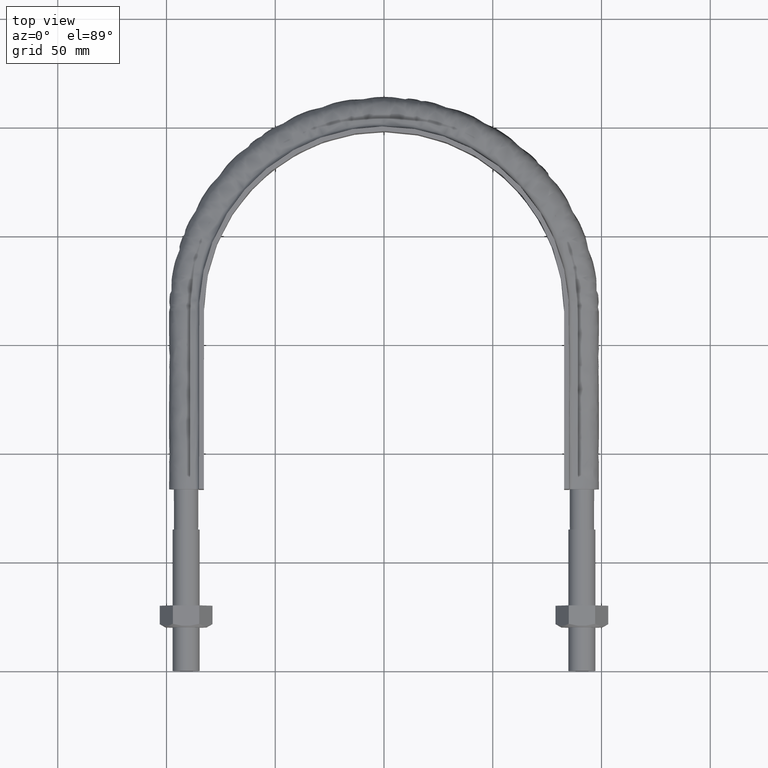
[diagram: clean part render]
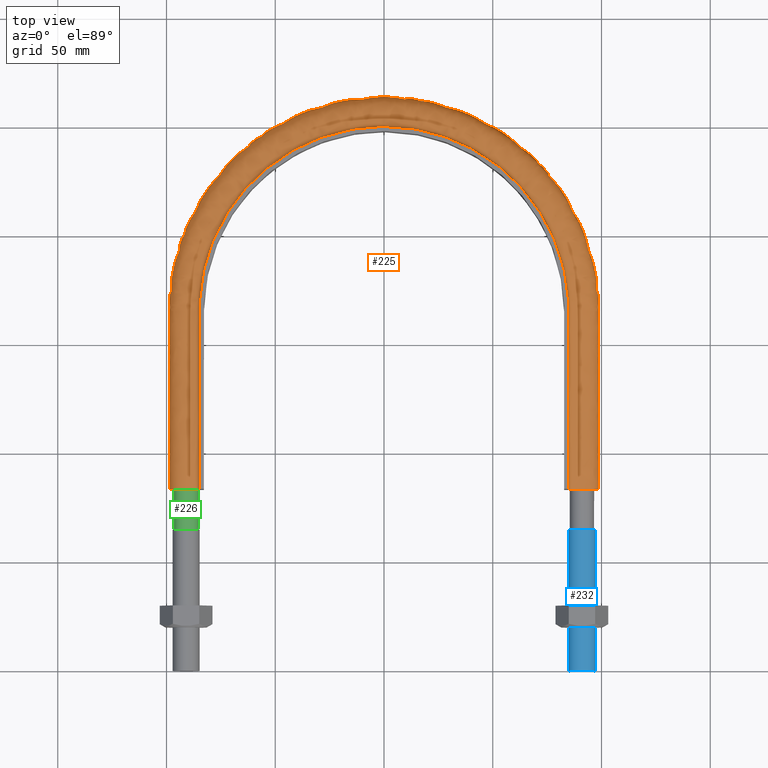
[diagram: same view with three faces highlighted in distinct colors, each labeled with its STEP entity id]
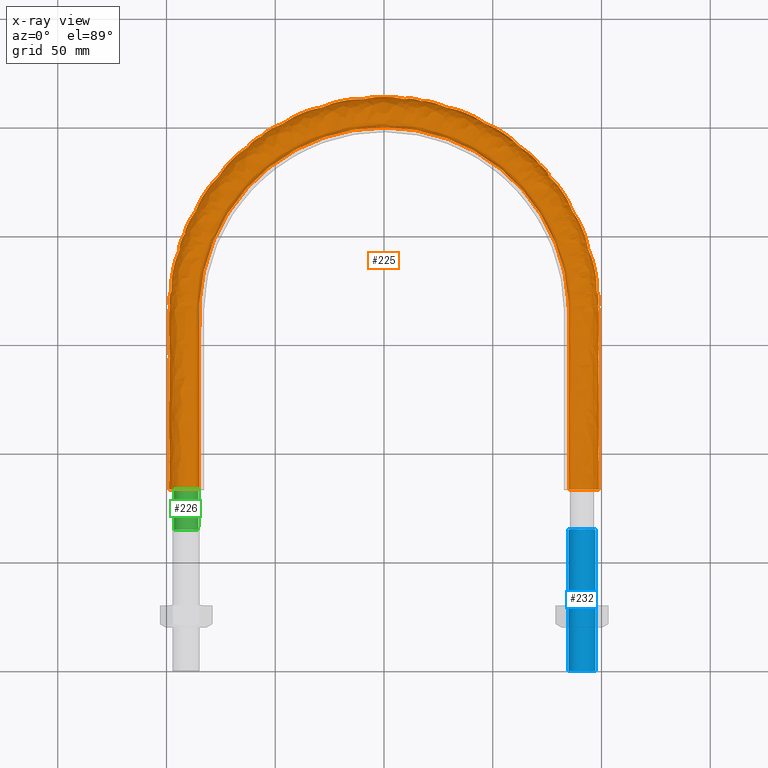
[diagram: x-ray of the same camera — body ghosted, the three highlighted faces saturated]
A machine part, top view with three faces highlighted in distinct colors.
The next image is the same camera in x-ray (body ghosted, the three faces saturated) — at least one of them is partly hidden behind the body in this view.
Their STEP definitions:

[orange] entity #225 — the highlighted face is a freeform B-spline surface patch.
#225 = ADVANCED_FACE( '', ( #275 ), #276, .F. );
#275 = FACE_OUTER_BOUND( '', #564, .T. );
#276 = B_SPLINE_SURFACE_WITH_KNOTS( '', 3, 3, ( ( #565, #566, #567, #568, #569, #570, #571, #572, #573, #574, #575, #576, #577, #578, #579, #580, #581 ), ( #582, #583, #584, #585, #586, #587, #588, #589, #590, #591, #592, #593, #594, #595, #596, #597, #598 ), ( #599, #600, #601, #602, #603, #604, #605, #606, #607, #608, #609, #610, #611, #612, #613, #614, #615 ), ( #616, #617, #618, #619, #620, #621, #622, #623, #624, #625, #626, #627, #628, #629, #630, #631, #632 ), ( #633, #634, #635, #636, #637, #638, #639, #640, #641, #642, #643, #644, #645, #646, #647, #648, #649 ), ( #650, #651, #652, #653, #654, #655, #656, #657, #658, #659, #660, #661, #662, #663, #664, #665, #666 ), ( #667, #668, #669, #670, #671, #672, #673, #674, #675, #676, #677, #678, #679, #680, #681, #682, #683 ), ( #684, #685, #686, #687, #688, #689, #690, #691, #692, #693, #694, #695, #696, #697, #698, #699, #700 ), ( #701, #702, #703, #704, #705, #706, #707, #708, #709, #710, #711, #712, #713, #714, #715, #716, #717 ), ( #718, #719, #720, #721, #722, #723, #724, #725, #726, #727, #728, #729, #730, #731, #732, #733, #734 ), ( #735, #736, #737, #738, #739, #740, #741, #742, #743, #744, #745, #746, #747, #748, #749, #750, #751 ), ( #752, #753, #754, #755, #756, #757, #758, #759, #760, #761, #762, #763, #764, #765, #766, #767, #768 ), ( #769, #770, #771, #772, #773, #774, #775, #776, #777, #778, #779, #780, #781, #782, #783, #784, #785 ), ( #786, #787, #788, #789, #790, #791, #792, #793, #794, #795, #796, #797, #798, #799, #800, #801, #802 ), ( #803, #804, #805, #806, #807, #808, #809, #810, #811, #812, #813, #814, #815, #816, #817, #818, #819 ), ( #820, #821, #822, #823, #824, #825, #826, #827, #828, #829, #830, #831, #832, #833, #834, #835, #836 ), ( #837, #838, #839, #840, #841, #842, #843, #844, #845, #846, #847, #848, #849, #850, #851, #852, #853 ), ( #854, #855, #856, #857, #858, #859, #860, #861, #862, #863, #864, #865, #866, #867, #868, #869, #870 ), ( #871, #872, #873, #874, #875, #876, #877, #878, #879, #880, #881, #882, #883, #884, #885, #886, #887 ), ( #888, #889, #890, #891, #892, #893, #894, #895, #896, #897, #898, #899, #900, #901, #902, #903, #904 ), ( #905, #906, #907, #908, #909, #910, #911, #912, #913, #914, #915, #916, #917, #918, #919, #920, #921 ), ( #922, #923, #924, #925, #926, #927, #928, #929, #930, #931, #932, #933, #934, #935, #936, #937, #938 ), ( #939, #940, #941, #942, #943, #944, #945, #946, #947, #948, #949, #950, #951, #952, #953, #954, #955 ), ( #956, #957, #958, #959, #960, #961, #962, #963, #964, #965, #966, #967, #968, #969, #970, #971, #972 ), ( #973, #974, #975, #976, #977, #978, #979, #980, #981, #982, #983, #984, #985, #986, #987, #988, #989 ), ( #990, #991, #992, #993, #994, #995, #996, #997, #998, #999, #1000, #1001, #1002, #1003, #1004, #1005, #1006 ), ( #1007, #1008, #1009, #1010, #1011, #1012, #1013, #1014, #1015, #1016, #1017, #1018, #1019, #1020, #1021, #1022, #1023 ), ( #1024, #1025, #1026, #1027, #1028, #1029, #1030, #1031, #1032, #1033, #1034, #1035, #1036, #1037, #1038, #1039, #1040 ), ( #1041, #1042, #1043, #1044, #1045, #1046, #1047, #1048, #1049, #1050, #1051, #1052, #1053, #1054, #1055, #1056, #1057 ), ( #1058, #1059, #1060, #1061, #1062, #1063, #1064, #1065, #1066, #1067, #1068, #1069, #1070, #1071, #1072, #1073, #1074 ), ( #1075, #1076, #1077, #1078, #1079, #1080, #1081, #1082, #1083, #1084, #1085, #1086, #1087, #1088, #1089, #1090, #1091 ) ), .UNSPECIFIED., .F., .F., .F., ( 4, 3, 1, 1, 1, 3, 3, 1, 1, 1, 3, 3, 1, 1, 1, 3, 4 ), ( 4, 3, 1, 1, 1, 1, 1, 1, 1, 3, 4 ), ( 0.105263157894737, 0.157894736842105, 0.210526315789474, 0.263157894736842, 0.315789473684211, 0.368421052631579, 0.421052631578947, 0.473684210526316, 0.526315789473684, 0.578947368421053, 0.631578947368421, 0.684210526315789, 0.736842105263158, 0.789473684210526, 0.842105263157895, 0.894736842105263, 0.947368421052632 ), ( 0.000000000000000, 1.00000000000000, 2.00000000000000, 3.00000000000000, 4.00000000000000, 5.00000000000000, 6.00000000000000, 7.00000000000000, 8.00000000000000, 9.00000000000000, 10.0000000000000 ), .UNSPECIFIED. );
#564 = EDGE_LOOP( '', ( #1417, #1418, #1419, #1420 ) );
#565 = CARTESIAN_POINT( '', ( 85.0500000000000, 83.5000000000000, -15.0000000000000 ) );
#566 = CARTESIAN_POINT( '', ( 85.0500000000000, 110.716666666667, -15.0000000000000 ) );
#567 = CARTESIAN_POINT( '', ( 85.0500000000000, 137.933333333333, -15.0000000000000 ) );
#568 = CARTESIAN_POINT( '', ( 85.0500000000000, 165.150000000000, -15.0000000000000 ) );
#569 = CARTESIAN_POINT( '', ( 85.0500000000000, 176.271250144316, -15.0000000000000 ) );
#570 = CARTESIAN_POINT( '', ( 80.6216056780530, 198.549331025117, -15.0000000000000 ) );
#571 = CARTESIAN_POINT( '', ( 61.7051055673243, 226.853821731524, -15.0000000000000 ) );
#572 = CARTESIAN_POINT( '', ( 33.3945624921453, 245.771972488282, -15.0000000000000 ) );
#573 = CARTESIAN_POINT( '', ( 6.21358030715059E-014, 252.414013755859, -15.0000000000000 ) );
#574 = CARTESIAN_POINT( '', ( -33.3945624921452, 245.771972488282, -15.0000000000000 ) );
#575 = CARTESIAN_POINT( '', ( -61.7051055673243, 226.853821731524, -15.0000000000000 ) );
#576 = CARTESIAN_POINT( '', ( -80.6216056780529, 198.549331025117, -15.0000000000000 ) );
#577 = CARTESIAN_POINT( '', ( -85.0499999999999, 176.271250144316, -15.0000000000000 ) );
#578 = CARTESIAN_POINT( '', ( -85.0500000000000, 165.150000000000, -15.0000000000000 ) );
#579 = CARTESIAN_POINT( '', ( -85.0499999999999, 137.933333333333, -15.0000000000000 ) );
#580 = CARTESIAN_POINT( '', ( -85.0499999999999, 110.716666666667, -15.0000000000000 ) );
#581 = CARTESIAN_POINT( '', ( -85.0499999999999, 83.5000000000001, -15.0000000000000 ) );
#582 = CARTESIAN_POINT( '', ( 85.0500000000000, 83.5000000000000, -13.2666666666667 ) );
#583 = CARTESIAN_POINT( '', ( 85.0500000000000, 110.716666666667, -13.2666666666667 ) );
#584 = CARTESIAN_POINT( '', ( 85.0500000000000, 137.933333333333, -13.2666666666667 ) );
#585 = CARTESIAN_POINT( '', ( 85.0500000000000, 165.150000000000, -13.2666666666667 ) );
#586 = CARTESIAN_POINT( '', ( 85.0500000000000, 176.271250144316, -13.2666666666667 ) );
#587 = CARTESIAN_POINT( '', ( 80.6216056780530, 198.549331025117, -13.2666666666667 ) );
#588 = CARTESIAN_POINT( '', ( 61.7051055673243, 226.853821731524, -13.2666666666667 ) );
#589 = CARTESIAN_POINT( '', ( 33.3945624921453, 245.771972488282, -13.2666666666667 ) );
#590 = CARTESIAN_POINT( '', ( 6.21358030715059E-014, 252.414013755859, -13.2666666666667 ) );
#591 = CARTESIAN_POINT( '', ( -33.3945624921452, 245.771972488282, -13.2666666666667 ) );
#592 = CARTESIAN_POINT( '', ( -61.7051055673243, 226.853821731524, -13.2666666666667 ) );
#593 = CARTESIAN_POINT( '', ( -80.6216056780529, 198.549331025117, -13.2666666666667 ) );
#594 = CARTESIAN_POINT( '', ( -85.0499999999999, 176.271250144316, -13.2666666666667 ) );
#595 = CARTESIAN_POINT( '', ( -85.0500000000000, 165.150000000000, -13.2666666666667 ) );
#596 = CARTESIAN_POINT( '', ( -85.0499999999999, 137.933333333333, -13.2666666666667 ) );
#597 = CARTESIAN_POINT( '', ( -85.0499999999999, 110.716666666667, -13.2666666666667 ) );
#598 = CARTESIAN_POINT( '', ( -85.0499999999999, 83.5000000000001, -13.2666666666667 ) );
#599 = CARTESIAN_POINT( '', ( 85.0500000000000, 83.5000000000000, -11.5333333333333 ) );
#600 = CARTESIAN_POINT( '', ( 85.0500000000000, 110.716666666667, -11.5333333333333 ) );
#601 = CARTESIAN_POINT( '', ( 85.0500000000000, 137.933333333333, -11.5333333333333 ) );
#602 = CARTESIAN_POINT( '', ( 85.0500000000000, 165.150000000000, -11.5333333333333 ) );
#603 = CARTESIAN_POINT( '', ( 85.0500000000000, 176.271250144316, -11.5333333333333 ) );
#604 = CARTESIAN_POINT( '', ( 80.6216056780530, 198.549331025117, -11.5333333333333 ) );
#605 = CARTESIAN_POINT( '', ( 61.7051055673243, 226.853821731524, -11.5333333333333 ) );
#606 = CARTESIAN_POINT( '', ( 33.3945624921453, 245.771972488282, -11.5333333333333 ) );
#607 = CARTESIAN_POINT( '', ( 6.21358030715059E-014, 252.414013755859, -11.5333333333333 ) );
#608 = CARTESIAN_POINT( '', ( -33.3945624921452, 245.771972488282, -11.5333333333333 ) );
#609 = CARTESIAN_POINT( '', ( -61.7051055673243, 226.853821731524, -11.5333333333333 ) );
#610 = CARTESIAN_POINT( '', ( -80.6216056780529, 198.549331025117, -11.5333333333333 ) );
#611 = CARTESIAN_POINT( '', ( -85.0499999999999, 176.271250144316, -11.5333333333333 ) );
#612 = CARTESIAN_POINT( '', ( -85.0500000000000, 165.150000000000, -11.5333333333333 ) );
#613 = CARTESIAN_POINT( '', ( -85.0499999999999, 137.933333333333, -11.5333333333333 ) );
#614 = CARTESIAN_POINT( '', ( -85.0499999999999, 110.716666666667, -11.5333333333333 ) );
#615 = CARTESIAN_POINT( '', ( -85.0499999999999, 83.5000000000001, -11.5333333333333 ) );
#616 = CARTESIAN_POINT( '', ( 85.0500000000000, 83.5000000000000, -9.79999999999998 ) );
#617 = CARTESIAN_POINT( '', ( 85.0500000000000, 110.716666666667, -9.79999999999998 ) );
#618 = CARTESIAN_POINT( '', ( 85.0500000000000, 137.933333333333, -9.79999999999999 ) );
#619 = CARTESIAN_POINT( '', ( 85.0500000000000, 165.150000000000, -9.79999999999999 ) );
#620 = CARTESIAN_POINT( '', ( 85.0500000000000, 176.271250144316, -9.79999999999999 ) );
#621 = CARTESIAN_POINT( '', ( 80.6216056780530, 198.549331025117, -9.80000000000000 ) );
#622 = CARTESIAN_POINT( '', ( 61.7051055673243, 226.853821731524, -9.79999999999998 ) );
#623 = CARTESIAN_POINT( '', ( 33.3945624921453, 245.771972488282, -9.80000000000000 ) );
#624 = CARTESIAN_POINT( '', ( 6.21358030715059E-014, 252.414013755859, -9.79999999999998 ) );
#625 = CARTESIAN_POINT( '', ( -33.3945624921452, 245.771972488282, -9.80000000000000 ) );
#626 = CARTESIAN_POINT( '', ( -61.7051055673243, 226.853821731524, -9.79999999999998 ) );
#627 = CARTESIAN_POINT( '', ( -80.6216056780529, 198.549331025117, -9.80000000000000 ) );
#628 = CARTESIAN_POINT( '', ( -85.0499999999999, 176.271250144316, -9.79999999999999 ) );
#629 = CARTESIAN_POINT( '', ( -85.0500000000000, 165.150000000000, -9.79999999999999 ) );
#630 = CARTESIAN_POINT( '', ( -85.0499999999999, 137.933333333333, -9.79999999999999 ) );
#631 = CARTESIAN_POINT( '', ( -85.0499999999999, 110.716666666667, -9.79999999999999 ) );
#632 = CARTESIAN_POINT( '', ( -85.0499999999999, 83.5000000000001, -9.79999999999999 ) );
#633 = CARTESIAN_POINT( '', ( 85.0500000000000, 83.5000000000000, -9.53823584172332 ) );
#634 = CARTESIAN_POINT( '', ( 85.0500000000000, 110.716666666667, -9.53823584172332 ) );
#635 = CARTESIAN_POINT( '', ( 85.0500000000000, 137.933333333333, -9.53823584172332 ) );
#636 = CARTESIAN_POINT( '', ( 85.0500000000000, 165.150000000000, -9.53823584172332 ) );
#637 = CARTESIAN_POINT( '', ( 85.0500000000000, 176.271250144316, -9.53823584172332 ) );
#638 = CARTESIAN_POINT( '', ( 80.6216056780530, 198.549331025117, -9.53823584172333 ) );
#639 = CARTESIAN_POINT( '', ( 61.7051055673243, 226.853821731524, -9.53823584172332 ) );
#640 = CARTESIAN_POINT( '', ( 33.3945624921453, 245.771972488282, -9.53823584172333 ) );
#641 = CARTESIAN_POINT( '', ( 6.21358030715059E-014, 252.414013755859, -9.53823584172332 ) );
#642 = CARTESIAN_POINT( '', ( -33.3945624921452, 245.771972488282, -9.53823584172333 ) );
#643 = CARTESIAN_POINT( '', ( -61.7051055673243, 226.853821731524, -9.53823584172332 ) );
#644 = CARTESIAN_POINT( '', ( -80.6216056780529, 198.549331025117, -9.53823584172333 ) );
#645 = CARTESIAN_POINT( '', ( -85.0499999999999, 176.271250144316, -9.53823584172332 ) );
#646 = CARTESIAN_POINT( '', ( -85.0500000000000, 165.150000000000, -9.53823584172332 ) );
#647 = CARTESIAN_POINT( '', ( -85.0499999999999, 137.933333333333, -9.53823584172332 ) );
#648 = CARTESIAN_POINT( '', ( -85.0499999999999, 110.716666666667, -9.53823584172332 ) );
#649 = CARTESIAN_POINT( '', ( -85.0499999999999, 83.5000000000001, -9.53823584172332 ) );
#650 = CARTESIAN_POINT( '', ( 85.1541362568359, 83.5000000000000, -9.01470752516999 ) );
#651 = CARTESIAN_POINT( '', ( 85.1541362568359, 110.716666666667, -9.01470752516999 ) );
#652 = CARTESIAN_POINT( '', ( 85.1541362568359, 137.933333333333, -9.01470752517000 ) );
#653 = CARTESIAN_POINT( '', ( 85.1541362568359, 165.150000000000, -9.01470752517000 ) );
#654 = CARTESIAN_POINT( '', ( 85.1541362568359, 176.285059470567, -9.01470752517000 ) );
#655 = CARTESIAN_POINT( '', ( 80.7203197548950, 198.590136276193, -9.01470752517000 ) );
#656 = CARTESIAN_POINT( '', ( 61.7806580508216, 226.929396684577, -9.01470752516999 ) );
#657 = CARTESIAN_POINT( '', ( 33.4354512015704, 245.870680145251, -9.01470752517000 ) );
#658 = CARTESIAN_POINT( '', ( 6.21488880585789E-014, 252.520864312629, -9.01470752516999 ) );
#659 = CARTESIAN_POINT( '', ( -33.4354512015703, 245.870680145251, -9.01470752517001 ) );
#660 = CARTESIAN_POINT( '', ( -61.7806580508216, 226.929396684577, -9.01470752516999 ) );
#661 = CARTESIAN_POINT( '', ( -80.7203197548949, 198.590136276193, -9.01470752517001 ) );
#662 = CARTESIAN_POINT( '', ( -85.1541362568359, 176.285059470567, -9.01470752517000 ) );
#663 = CARTESIAN_POINT( '', ( -85.1541362568359, 165.150000000000, -9.01470752517000 ) );
#664 = CARTESIAN_POINT( '', ( -85.1541362568359, 137.933333333333, -9.01470752517000 ) );
#665 = CARTESIAN_POINT( '', ( -85.1541362568359, 110.716666666667, -9.01470752517000 ) );
#666 = CARTESIAN_POINT( '', ( -85.1541362568359, 83.5000000000001, -9.01470752517000 ) );
#667 = CARTESIAN_POINT( '', ( 85.5989687109389, 83.5000000000000, -8.34896871093886 ) );
#668 = CARTESIAN_POINT( '', ( 85.5989687109389, 110.716666666667, -8.34896871093886 ) );
#669 = CARTESIAN_POINT( '', ( 85.5989687109389, 137.933333333333, -8.34896871093886 ) );
#670 = CARTESIAN_POINT( '', ( 85.5989687109389, 165.150000000000, -8.34896871093886 ) );
#671 = CARTESIAN_POINT( '', ( 85.5989687109389, 176.344047921589, -8.34896871093886 ) );
#672 = CARTESIAN_POINT( '', ( 81.1419906156532, 198.764441561673, -8.34896871093887 ) );
#673 = CARTESIAN_POINT( '', ( 62.1033909554682, 227.252225571044, -8.34896871093886 ) );
#674 = CARTESIAN_POINT( '', ( 33.6101129909540, 246.292323582632, -8.34896871093887 ) );
#675 = CARTESIAN_POINT( '', ( 6.04700589184310E-014, 252.977291275093, -8.34896871093886 ) );
#676 = CARTESIAN_POINT( '', ( -33.6101129909539, 246.292323582632, -8.34896871093887 ) );
#677 = CARTESIAN_POINT( '', ( -62.1033909554682, 227.252225571044, -8.34896871093886 ) );
#678 = CARTESIAN_POINT( '', ( -81.1419906156532, 198.764441561673, -8.34896871093887 ) );
#679 = CARTESIAN_POINT( '', ( -85.5989687109388, 176.344047921589, -8.34896871093886 ) );
#680 = CARTESIAN_POINT( '', ( -85.5989687109388, 165.150000000000, -8.34896871093886 ) );
#681 = CARTESIAN_POINT( '', ( -85.5989687109388, 137.933333333333, -8.34896871093886 ) );
#682 = CARTESIAN_POINT( '', ( -85.5989687109388, 110.716666666667, -8.34896871093886 ) );
#683 = CARTESIAN_POINT( '', ( -85.5989687109388, 83.5000000000001, -8.34896871093886 ) );
#684 = CARTESIAN_POINT( '', ( 86.2647075251700, 83.5000000000000, -7.90413625683589 ) );
#685 = CARTESIAN_POINT( '', ( 86.2647075251700, 110.716666666667, -7.90413625683589 ) );
#686 = CARTESIAN_POINT( '', ( 86.2647075251700, 137.933333333333, -7.90413625683590 ) );
#687 = CARTESIAN_POINT( '', ( 86.2647075251700, 165.150000000000, -7.90413625683590 ) );
#688 = CARTESIAN_POINT( '', ( 86.2647075251700, 176.432330377319, -7.90413625683590 ) );
#689 = CARTESIAN_POINT( '', ( 81.7730656558122, 199.025307856386, -7.90413625683590 ) );
#690 = CARTESIAN_POINT( '', ( 62.5863948803642, 227.735373142885, -7.90413625683589 ) );
#691 = CARTESIAN_POINT( '', ( 33.8715128314630, 246.923357580806, -7.90413625683590 ) );
#692 = CARTESIAN_POINT( '', ( 5.88189872275561E-014, 253.660382497352, -7.90413625683589 ) );
#693 = CARTESIAN_POINT( '', ( -33.8715128314629, 246.923357580806, -7.90413625683591 ) );
#694 = CARTESIAN_POINT( '', ( -62.5863948803641, 227.735373142885, -7.90413625683589 ) );
#695 = CARTESIAN_POINT( '', ( -81.7730656558121, 199.025307856386, -7.90413625683591 ) );
#696 = CARTESIAN_POINT( '', ( -86.2647075251700, 176.432330377319, -7.90413625683590 ) );
#697 = CARTESIAN_POINT( '', ( -86.2647075251700, 165.150000000000, -7.90413625683590 ) );
#698 = CARTESIAN_POINT( '', ( -86.2647075251700, 137.933333333333, -7.90413625683590 ) );
#699 = CARTESIAN_POINT( '', ( -86.2647075251700, 110.716666666667, -7.90413625683590 ) );
#700 = CARTESIAN_POINT( '', ( -86.2647075251700, 83.5000000000001, -7.90413625683590 ) );
#701 = CARTESIAN_POINT( '', ( 86.7882358417233, 83.5000000000000, -7.79999999999998 ) );
#702 = CARTESIAN_POINT( '', ( 86.7882358417233, 110.716666666667, -7.79999999999998 ) );
#703 = CARTESIAN_POINT( '', ( 86.7882358417233, 137.933333333333, -7.79999999999999 ) );
#704 = CARTESIAN_POINT( '', ( 86.7882358417233, 165.150000000000, -7.79999999999999 ) );
#705 = CARTESIAN_POINT( '', ( 86.7882358417233, 176.501754548543, -7.79999999999999 ) );
#706 = CARTESIAN_POINT( '', ( 82.2693348327488, 199.230449706609, -7.79999999999999 ) );
#707 = CARTESIAN_POINT( '', ( 62.9662228643784, 228.115314088982, -7.79999999999998 ) );
#708 = CARTESIAN_POINT( '', ( 34.0770742551378, 247.419594482862, -7.79999999999999 ) );
#709 = CARTESIAN_POINT( '', ( 6.06194933757985E-014, 254.197556521154, -7.79999999999998 ) );
#710 = CARTESIAN_POINT( '', ( -34.0770742551378, 247.419594482862, -7.79999999999999 ) );
#711 = CARTESIAN_POINT( '', ( -62.9662228643783, 228.115314088982, -7.79999999999998 ) );
#712 = CARTESIAN_POINT( '', ( -82.2693348327487, 199.230449706609, -7.80000000000000 ) );
#713 = CARTESIAN_POINT( '', ( -86.7882358417233, 176.501754548543, -7.79999999999999 ) );
#714 = CARTESIAN_POINT( '', ( -86.7882358417233, 165.150000000000, -7.79999999999999 ) );
#715 = CARTESIAN_POINT( '', ( -86.7882358417233, 137.933333333333, -7.79999999999999 ) );
#716 = CARTESIAN_POINT( '', ( -86.7882358417233, 110.716666666667, -7.79999999999999 ) );
#717 = CARTESIAN_POINT( '', ( -86.7882358417233, 83.5000000000001, -7.79999999999999 ) );
#718 = CARTESIAN_POINT( '', ( 87.0500000000000, 83.5000000000000, -7.79999999999998 ) );
#719 = CARTESIAN_POINT( '', ( 87.0500000000000, 110.716666666667, -7.79999999999998 ) );
#720 = CARTESIAN_POINT( '', ( 87.0500000000000, 137.933333333333, -7.79999999999999 ) );
#721 = CARTESIAN_POINT( '', ( 87.0500000000000, 165.150000000000, -7.79999999999999 ) );
#722 = CARTESIAN_POINT( '', ( 87.0500000000000, 176.536466634155, -7.79999999999999 ) );
#723 = CARTESIAN_POINT( '', ( 82.5174694212171, 199.333020631721, -7.79999999999999 ) );
#724 = CARTESIAN_POINT( '', ( 63.1561368563854, 228.305284562031, -7.79999999999998 ) );
#725 = CARTESIAN_POINT( '', ( 34.1798549669753, 247.667712933890, -7.79999999999999 ) );
#726 = CARTESIAN_POINT( '', ( 6.06523847119314E-014, 254.466143533055, -7.79999999999998 ) );
#727 = CARTESIAN_POINT( '', ( -34.1798549669752, 247.667712933890, -7.79999999999999 ) );
#728 = CARTESIAN_POINT( '', ( -63.1561368563854, 228.305284562031, -7.79999999999998 ) );
#729 = CARTESIAN_POINT( '', ( -82.5174694212170, 199.333020631721, -7.80000000000000 ) );
#730 = CARTESIAN_POINT( '', ( -87.0499999999999, 176.536466634155, -7.79999999999999 ) );
#731 = CARTESIAN_POINT( '', ( -87.0500000000000, 165.150000000000, -7.79999999999999 ) );
#732 = CARTESIAN_POINT( '', ( -87.0499999999999, 137.933333333333, -7.79999999999999 ) );
#733 = CARTESIAN_POINT( '', ( -87.0499999999999, 110.716666666667, -7.79999999999999 ) );
#734 = CARTESIAN_POINT( '', ( -87.0499999999999, 83.5000000000001, -7.79999999999999 ) );
#735 = CARTESIAN_POINT( '', ( 88.3666666666667, 83.5000000000000, -7.79999999999999 ) );
#736 = CARTESIAN_POINT( '', ( 88.3666666666667, 110.716666666667, -7.79999999999999 ) );
#737 = CARTESIAN_POINT( '', ( 88.3666666666667, 137.933333333333, -7.79999999999999 ) );
#738 = CARTESIAN_POINT( '', ( 88.3666666666667, 165.150000000000, -7.79999999999999 ) );
#739 = CARTESIAN_POINT( '', ( 88.3666666666667, 176.711067489966, -7.79999999999999 ) );
#740 = CARTESIAN_POINT( '', ( 83.7655797188001, 199.848949622735, -7.80000000000000 ) );
#741 = CARTESIAN_POINT( '', ( 64.1113991216840, 229.260830925448, -7.79999999999999 ) );
#742 = CARTESIAN_POINT( '', ( 34.6968391795717, 248.915742060582, -7.80000000000000 ) );
#743 = CARTESIAN_POINT( '', ( 6.42872741988498E-014, 255.817128969709, -7.79999999999999 ) );
#744 = CARTESIAN_POINT( '', ( -34.6968391795716, 248.915742060582, -7.80000000000000 ) );
#745 = CARTESIAN_POINT( '', ( -64.1113991216840, 229.260830925448, -7.79999999999998 ) );
#746 = CARTESIAN_POINT( '', ( -83.7655797188000, 199.848949622735, -7.80000000000000 ) );
#747 = CARTESIAN_POINT( '', ( -88.3666666666666, 176.711067489966, -7.79999999999999 ) );
#748 = CARTESIAN_POINT( '', ( -88.3666666666666, 165.150000000000, -7.79999999999999 ) );
#749 = CARTESIAN_POINT( '', ( -88.3666666666666, 137.933333333333, -7.79999999999999 ) );
#750 = CARTESIAN_POINT( '', ( -88.3666666666666, 110.716666666667, -7.79999999999999 ) );
#751 = CARTESIAN_POINT( '', ( -88.3666666666666, 83.5000000000001, -7.79999999999999 ) );
#752 = CARTESIAN_POINT( '', ( 89.6833333333333, 83.5000000000000, -7.79999999999999 ) );
#753 = CARTESIAN_POINT( '', ( 89.6833333333333, 110.716666666667, -7.79999999999999 ) );
#754 = CARTESIAN_POINT( '', ( 89.6833333333333, 137.933333333333, -7.79999999999999 ) );
#755 = CARTESIAN_POINT( '', ( 89.6833333333333, 165.150000000000, -7.79999999999999 ) );
#756 = CARTESIAN_POINT( '', ( 89.6833333333334, 176.885668345777, -7.79999999999999 ) );
#757 = CARTESIAN_POINT( '', ( 85.0136900163831, 200.364878613750, -7.80000000000000 ) );
#758 = CARTESIAN_POINT( '', ( 65.0666613869826, 230.216377288864, -7.79999999999999 ) );
#759 = CARTESIAN_POINT( '', ( 35.2138233921681, 250.163771187274, -7.80000000000000 ) );
#760 = CARTESIAN_POINT( '', ( 6.09832697818609E-014, 257.168114406363, -7.79999999999999 ) );
#761 = CARTESIAN_POINT( '', ( -35.2138233921680, 250.163771187274, -7.80000000000000 ) );
#762 = CARTESIAN_POINT( '', ( -65.0666613869825, 230.216377288864, -7.79999999999998 ) );
#763 = CARTESIAN_POINT( '', ( -85.0136900163831, 200.364878613750, -7.80000000000000 ) );
#764 = CARTESIAN_POINT( '', ( -89.6833333333333, 176.885668345777, -7.79999999999999 ) );
#765 = CARTESIAN_POINT( '', ( -89.6833333333333, 165.150000000000, -7.79999999999999 ) );
#766 = CARTESIAN_POINT( '', ( -89.6833333333333, 137.933333333333, -7.79999999999999 ) );
#767 = CARTESIAN_POINT( '', ( -89.6833333333333, 110.716666666667, -7.79999999999999 ) );
#768 = CARTESIAN_POINT( '', ( -89.6833333333333, 83.5000000000001, -7.79999999999999 ) );
#769 = CARTESIAN_POINT( '', ( 91.0000000000000, 83.5000000000000, -7.79999999999999 ) );
#770 = CARTESIAN_POINT( '', ( 91.0000000000000, 110.716666666667, -7.79999999999999 ) );
#771 = CARTESIAN_POINT( '', ( 91.0000000000000, 137.933333333333, -7.79999999999999 ) );
#772 = CARTESIAN_POINT( '', ( 91.0000000000000, 165.150000000000, -7.79999999999999 ) );
#773 = CARTESIAN_POINT( '', ( 91.0000000000000, 177.060269201588, -7.79999999999999 ) );
#774 = CARTESIAN_POINT( '', ( 86.2618003139662, 200.880807604765, -7.80000000000000 ) );
#775 = CARTESIAN_POINT( '', ( 66.0219236522812, 231.171923652281, -7.79999999999999 ) );
#776 = CARTESIAN_POINT( '', ( 35.7308076047645, 251.411800313966, -7.80000000000000 ) );
#777 = CARTESIAN_POINT( '', ( 6.46181592687794E-014, 258.519099843017, -7.79999999999999 ) );
#778 = CARTESIAN_POINT( '', ( -35.7308076047645, 251.411800313966, -7.80000000000000 ) );
#779 = CARTESIAN_POINT( '', ( -66.0219236522811, 231.171923652281, -7.79999999999998 ) );
#780 = CARTESIAN_POINT( '', ( -86.2618003139661, 200.880807604765, -7.80000000000000 ) );
#781 = CARTESIAN_POINT( '', ( -91.0000000000000, 177.060269201588, -7.79999999999999 ) );
#782 = CARTESIAN_POINT( '', ( -91.0000000000000, 165.150000000000, -7.79999999999999 ) );
#783 = CARTESIAN_POINT( '', ( -91.0000000000000, 137.933333333333, -7.79999999999999 ) );
#784 = CARTESIAN_POINT( '', ( -91.0000000000000, 110.716666666667, -7.79999999999999 ) );
#785 = CARTESIAN_POINT( '', ( -91.0000000000000, 83.5000000000001, -7.79999999999999 ) );
#786 = CARTESIAN_POINT( '', ( 93.0373902247172, 83.5000000000000, -7.79999999999998 ) );
#787 = CARTESIAN_POINT( '', ( 93.0373902247172, 110.716666666667, -7.79999999999998 ) );
#788 = CARTESIAN_POINT( '', ( 93.0373902247172, 137.933333333333, -7.79999999999999 ) );
#789 = CARTESIAN_POINT( '', ( 93.0373902247172, 165.150000000000, -7.79999999999999 ) );
#790 = CARTESIAN_POINT( '', ( 93.0373902247172, 177.330443943505, -7.79999999999999 ) );
#791 = CARTESIAN_POINT( '', ( 88.1931074428253, 201.679148376619, -7.79999999999999 ) );
#792 = CARTESIAN_POINT( '', ( 67.5000821343271, 232.650521743488, -7.79999999999998 ) );
#793 = CARTESIAN_POINT( '', ( 36.5307812106458, 253.342981840208, -7.79999999999999 ) );
#794 = CARTESIAN_POINT( '', ( 6.31394390865922E-014, 260.609594416972, -7.79999999999998 ) );
#795 = CARTESIAN_POINT( '', ( -36.5307812106457, 253.342981840208, -7.79999999999999 ) );
#796 = CARTESIAN_POINT( '', ( -67.5000821343271, 232.650521743488, -7.79999999999998 ) );
#797 = CARTESIAN_POINT( '', ( -88.1931074428252, 201.679148376619, -7.80000000000000 ) );
#798 = CARTESIAN_POINT( '', ( -93.0373902247171, 177.330443943505, -7.79999999999999 ) );
#799 = CARTESIAN_POINT( '', ( -93.0373902247171, 165.150000000000, -7.79999999999999 ) );
#800 = CARTESIAN_POINT( '', ( -93.0373902247171, 137.933333333333, -7.79999999999999 ) );
#801 = CARTESIAN_POINT( '', ( -93.0373902247171, 110.716666666667, -7.79999999999999 ) );
#802 = CARTESIAN_POINT( '', ( -93.0373902247171, 83.5000000000001, -7.79999999999999 ) );
#803 = CARTESIAN_POINT( '', ( 97.1121706741516, 83.5000000000000, -6.11217067415154 ) );
#804 = CARTESIAN_POINT( '', ( 97.1121706741516, 110.716666666667, -6.11217067415154 ) );
#805 = CARTESIAN_POINT( '', ( 97.1121706741516, 137.933333333333, -6.11217067415154 ) );
#806 = CARTESIAN_POINT( '', ( 97.1121706741516, 165.150000000000, -6.11217067415154 ) );
#807 = CARTESIAN_POINT( '', ( 97.1121706741516, 177.870793427338, -6.11217067415154 ) );
#808 = CARTESIAN_POINT( '', ( 92.0557217005435, 203.275829920327, -6.11217067415155 ) );
#809 = CARTESIAN_POINT( '', ( 70.4563990984190, 235.607717925902, -6.11217067415154 ) );
#810 = CARTESIAN_POINT( '', ( 38.1307284224084, 257.205344892691, -6.11217067415155 ) );
#811 = CARTESIAN_POINT( '', ( 6.36514456741715E-014, 264.790583564882, -6.11217067415154 ) );
#812 = CARTESIAN_POINT( '', ( -38.1307284224083, 257.205344892691, -6.11217067415155 ) );
#813 = CARTESIAN_POINT( '', ( -70.4563990984190, 235.607717925902, -6.11217067415153 ) );
#814 = CARTESIAN_POINT( '', ( -92.0557217005435, 203.275829920327, -6.11217067415155 ) );
#815 = CARTESIAN_POINT( '', ( -97.1121706741515, 177.870793427338, -6.11217067415154 ) );
#816 = CARTESIAN_POINT( '', ( -97.1121706741515, 165.150000000000, -6.11217067415154 ) );
#817 = CARTESIAN_POINT( '', ( -97.1121706741515, 137.933333333333, -6.11217067415154 ) );
#818 = CARTESIAN_POINT( '', ( -97.1121706741515, 110.716666666667, -6.11217067415154 ) );
#819 = CARTESIAN_POINT( '', ( -97.1121706741515, 83.5000000000001, -6.11217067415154 ) );
#820 = CARTESIAN_POINT( '', ( 99.6439146629242, 83.5000000000000, -2.58929722408949E-015 ) );
#821 = CARTESIAN_POINT( '', ( 99.6439146629242, 110.716666666667, -2.58929722408949E-015 ) );
#822 = CARTESIAN_POINT( '', ( 99.6439146629242, 137.933333333333, -2.58929722408950E-015 ) );
#823 = CARTESIAN_POINT( '', ( 99.6439146629242, 165.150000000000, -2.58929722408950E-015 ) );
#824 = CARTESIAN_POINT( '', ( 99.6439146629242, 178.206523554275, -2.58929722408950E-015 ) );
#825 = CARTESIAN_POINT( '', ( 94.4556425181874, 204.267880645619, -2.58929722408950E-015 ) );
#826 = CARTESIAN_POINT( '', ( 72.2932189702198, 237.445084073933, -2.58929722408949E-015 ) );
#827 = CARTESIAN_POINT( '', ( 39.1248081736980, 259.605109631412, -2.58929722408950E-015 ) );
#828 = CARTESIAN_POINT( '', ( 6.39695657830710E-014, 267.388317178680, -2.58929722408949E-015 ) );
#829 = CARTESIAN_POINT( '', ( -39.1248081736980, 259.605109631412, -2.58929722408950E-015 ) );
#830 = CARTESIAN_POINT( '', ( -72.2932189702197, 237.445084073933, -2.58929722408949E-015 ) );
#831 = CARTESIAN_POINT( '', ( -94.4556425181873, 204.267880645619, -2.58929722408950E-015 ) );
#832 = CARTESIAN_POINT( '', ( -99.6439146629242, 178.206523554275, -2.58929722408950E-015 ) );
#833 = CARTESIAN_POINT( '', ( -99.6439146629242, 165.150000000000, -2.58929722408950E-015 ) );
#834 = CARTESIAN_POINT( '', ( -99.6439146629242, 137.933333333333, -2.58929722408950E-015 ) );
#835 = CARTESIAN_POINT( '', ( -99.6439146629242, 110.716666666667, -2.58929722408950E-015 ) );
#836 = CARTESIAN_POINT( '', ( -99.6439146629242, 83.5000000000001, -2.58929722408950E-015 ) );
#837 = CARTESIAN_POINT( '', ( 97.1121706741516, 83.5000000000000, 6.11217067415153 ) );
#838 = CARTESIAN_POINT( '', ( 97.1121706741516, 110.716666666667, 6.11217067415153 ) );
#839 = CARTESIAN_POINT( '', ( 97.1121706741516, 137.933333333333, 6.11217067415154 ) );
#840 = CARTESIAN_POINT( '', ( 97.1121706741516, 165.150000000000, 6.11217067415154 ) );
#841 = CARTESIAN_POINT( '', ( 97.1121706741516, 177.870793427338, 6.11217067415154 ) );
#842 = CARTESIAN_POINT( '', ( 92.0557217005435, 203.275829920327, 6.11217067415154 ) );
#843 = CARTESIAN_POINT( '', ( 70.4563990984190, 235.607717925902, 6.11217067415153 ) );
#844 = CARTESIAN_POINT( '', ( 38.1307284224084, 257.205344892691, 6.11217067415154 ) );
#845 = CARTESIAN_POINT( '', ( 6.36514456741715E-014, 264.790583564882, 6.11217067415153 ) );
#846 = CARTESIAN_POINT( '', ( -38.1307284224083, 257.205344892691, 6.11217067415154 ) );
#847 = CARTESIAN_POINT( '', ( -70.4563990984190, 235.607717925902, 6.11217067415153 ) );
#848 = CARTESIAN_POINT( '', ( -92.0557217005435, 203.275829920327, 6.11217067415154 ) );
#849 = CARTESIAN_POINT( '', ( -97.1121706741515, 177.870793427338, 6.11217067415154 ) );
#850 = CARTESIAN_POINT( '', ( -97.1121706741515, 165.150000000000, 6.11217067415154 ) );
#851 = CARTESIAN_POINT( '', ( -97.1121706741515, 137.933333333333, 6.11217067415154 ) );
#852 = CARTESIAN_POINT( '', ( -97.1121706741515, 110.716666666667, 6.11217067415154 ) );
#853 = CARTESIAN_POINT( '', ( -97.1121706741515, 83.5000000000001, 6.11217067415154 ) );
#854 = CARTESIAN_POINT( '', ( 93.0373902247172, 83.5000000000000, 7.79999999999998 ) );
#855 = CARTESIAN_POINT( '', ( 93.0373902247172, 110.716666666667, 7.79999999999998 ) );
#856 = CARTESIAN_POINT( '', ( 93.0373902247172, 137.933333333333, 7.79999999999998 ) );
#857 = CARTESIAN_POINT( '', ( 93.0373902247172, 165.150000000000, 7.79999999999998 ) );
#858 = CARTESIAN_POINT( '', ( 93.0373902247172, 177.330443943505, 7.79999999999998 ) );
#859 = CARTESIAN_POINT( '', ( 88.1931074428253, 201.679148376619, 7.79999999999999 ) );
#860 = CARTESIAN_POINT( '', ( 67.5000821343271, 232.650521743488, 7.79999999999998 ) );
#861 = CARTESIAN_POINT( '', ( 36.5307812106458, 253.342981840208, 7.79999999999999 ) );
#862 = CARTESIAN_POINT( '', ( 6.31394390865922E-014, 260.609594416972, 7.79999999999998 ) );
#863 = CARTESIAN_POINT( '', ( -36.5307812106457, 253.342981840208, 7.79999999999999 ) );
#864 = CARTESIAN_POINT( '', ( -67.5000821343271, 232.650521743488, 7.79999999999997 ) );
#865 = CARTESIAN_POINT( '', ( -88.1931074428252, 201.679148376619, 7.79999999999999 ) );
#866 = CARTESIAN_POINT( '', ( -93.0373902247171, 177.330443943505, 7.79999999999998 ) );
#867 = CARTESIAN_POINT( '', ( -93.0373902247171, 165.150000000000, 7.79999999999998 ) );
#868 = CARTESIAN_POINT( '', ( -93.0373902247171, 137.933333333333, 7.79999999999998 ) );
#869 = CARTESIAN_POINT( '', ( -93.0373902247171, 110.716666666667, 7.79999999999998 ) );
#870 = CARTESIAN_POINT( '', ( -93.0373902247171, 83.5000000000001, 7.79999999999998 ) );
#871 = CARTESIAN_POINT( '', ( 91.0000000000000, 83.5000000000000, 7.79999999999998 ) );
#872 = CARTESIAN_POINT( '', ( 91.0000000000000, 110.716666666667, 7.79999999999998 ) );
#873 = CARTESIAN_POINT( '', ( 91.0000000000000, 137.933333333333, 7.79999999999998 ) );
#874 = CARTESIAN_POINT( '', ( 91.0000000000000, 165.150000000000, 7.79999999999998 ) );
#875 = CARTESIAN_POINT( '', ( 91.0000000000000, 177.060269201588, 7.79999999999998 ) );
#876 = CARTESIAN_POINT( '', ( 86.2618003139662, 200.880807604765, 7.79999999999999 ) );
#877 = CARTESIAN_POINT( '', ( 66.0219236522812, 231.171923652281, 7.79999999999998 ) );
#878 = CARTESIAN_POINT( '', ( 35.7308076047645, 251.411800313966, 7.79999999999999 ) );
#879 = CARTESIAN_POINT( '', ( 6.28834357928025E-014, 258.519099843017, 7.79999999999998 ) );
#880 = CARTESIAN_POINT( '', ( -35.7308076047645, 251.411800313966, 7.79999999999999 ) );
#881 = CARTESIAN_POINT( '', ( -66.0219236522811, 231.171923652281, 7.79999999999997 ) );
#882 = CARTESIAN_POINT( '', ( -86.2618003139661, 200.880807604765, 7.79999999999999 ) );
#883 = CARTESIAN_POINT( '', ( -91.0000000000000, 177.060269201588, 7.79999999999998 ) );
#884 = CARTESIAN_POINT( '', ( -91.0000000000000, 165.150000000000, 7.79999999999998 ) );
#885 = CARTESIAN_POINT( '', ( -91.0000000000000, 137.933333333333, 7.79999999999998 ) );
#886 = CARTESIAN_POINT( '', ( -91.0000000000000, 110.716666666667, 7.79999999999998 ) );
#887 = CARTESIAN_POINT( '', ( -91.0000000000000, 83.5000000000001, 7.79999999999998 ) );
#888 = CARTESIAN_POINT( '', ( 89.6833333333333, 83.5000000000000, 7.79999999999999 ) );
#889 = CARTESIAN_POINT( '', ( 89.6833333333333, 110.716666666667, 7.79999999999999 ) );
#890 = CARTESIAN_POINT( '', ( 89.6833333333333, 137.933333333333, 7.79999999999999 ) );
#891 = CARTESIAN_POINT( '', ( 89.6833333333333, 165.150000000000, 7.79999999999999 ) );
#892 = CARTESIAN_POINT( '', ( 89.6833333333334, 176.885668345777, 7.79999999999999 ) );
#893 = CARTESIAN_POINT( '', ( 85.0136900163831, 200.364878613750, 7.80000000000000 ) );
#894 = CARTESIAN_POINT( '', ( 65.0666613869826, 230.216377288864, 7.79999999999999 ) );
#895 = CARTESIAN_POINT( '', ( 35.2138233921681, 250.163771187274, 7.80000000000000 ) );
#896 = CARTESIAN_POINT( '', ( 5.75138228299073E-014, 257.168114406363, 7.79999999999999 ) );
#897 = CARTESIAN_POINT( '', ( -35.2138233921681, 250.163771187274, 7.80000000000000 ) );
#898 = CARTESIAN_POINT( '', ( -65.0666613869825, 230.216377288864, 7.79999999999998 ) );
#899 = CARTESIAN_POINT( '', ( -85.0136900163831, 200.364878613750, 7.80000000000000 ) );
#900 = CARTESIAN_POINT( '', ( -89.6833333333333, 176.885668345777, 7.79999999999999 ) );
#901 = CARTESIAN_POINT( '', ( -89.6833333333333, 165.150000000000, 7.79999999999999 ) );
#902 = CARTESIAN_POINT( '', ( -89.6833333333333, 137.933333333333, 7.79999999999999 ) );
#903 = CARTESIAN_POINT( '', ( -89.6833333333333, 110.716666666667, 7.79999999999999 ) );
#904 = CARTESIAN_POINT( '', ( -89.6833333333333, 83.5000000000001, 7.79999999999999 ) );
#905 = CARTESIAN_POINT( '', ( 88.3666666666667, 83.5000000000000, 7.79999999999999 ) );
#906 = CARTESIAN_POINT( '', ( 88.3666666666667, 110.716666666667, 7.79999999999999 ) );
#907 = CARTESIAN_POINT( '', ( 88.3666666666667, 137.933333333333, 7.79999999999999 ) );
#908 = CARTESIAN_POINT( '', ( 88.3666666666667, 165.150000000000, 7.79999999999999 ) );
#909 = CARTESIAN_POINT( '', ( 88.3666666666667, 176.711067489966, 7.79999999999999 ) );
#910 = CARTESIAN_POINT( '', ( 83.7655797188001, 199.848949622735, 7.80000000000000 ) );
#911 = CARTESIAN_POINT( '', ( 64.1113991216840, 229.260830925448, 7.79999999999999 ) );
#912 = CARTESIAN_POINT( '', ( 34.6968391795717, 248.915742060582, 7.80000000000000 ) );
#913 = CARTESIAN_POINT( '', ( 5.56136568189657E-014, 255.817128969709, 7.79999999999999 ) );
#914 = CARTESIAN_POINT( '', ( -34.6968391795716, 248.915742060582, 7.80000000000000 ) );
#915 = CARTESIAN_POINT( '', ( -64.1113991216840, 229.260830925448, 7.79999999999998 ) );
#916 = CARTESIAN_POINT( '', ( -83.7655797188000, 199.848949622735, 7.80000000000000 ) );
#917 = CARTESIAN_POINT( '', ( -88.3666666666666, 176.711067489966, 7.79999999999999 ) );
#918 = CARTESIAN_POINT( '', ( -88.3666666666666, 165.150000000000, 7.79999999999999 ) );
#919 = CARTESIAN_POINT( '', ( -88.3666666666666, 137.933333333333, 7.79999999999999 ) );
#920 = CARTESIAN_POINT( '', ( -88.3666666666666, 110.716666666667, 7.79999999999999 ) );
#921 = CARTESIAN_POINT( '', ( -88.3666666666666, 83.5000000000001, 7.79999999999999 ) );
#922 = CARTESIAN_POINT( '', ( 87.0500000000000, 83.5000000000000, 7.79999999999999 ) );
#923 = CARTESIAN_POINT( '', ( 87.0500000000000, 110.716666666667, 7.79999999999999 ) );
#924 = CARTESIAN_POINT( '', ( 87.0500000000000, 137.933333333333, 7.79999999999999 ) );
#925 = CARTESIAN_POINT( '', ( 87.0500000000000, 165.150000000000, 7.79999999999999 ) );
#926 = CARTESIAN_POINT( '', ( 87.0500000000000, 176.536466634155, 7.79999999999999 ) );
#927 = CARTESIAN_POINT( '', ( 82.5174694212171, 199.333020631721, 7.80000000000000 ) );
#928 = CARTESIAN_POINT( '', ( 63.1561368563854, 228.305284562031, 7.79999999999999 ) );
#929 = CARTESIAN_POINT( '', ( 34.1798549669753, 247.667712933890, 7.80000000000000 ) );
#930 = CARTESIAN_POINT( '', ( 5.54482142840009E-014, 254.466143533055, 7.79999999999999 ) );
#931 = CARTESIAN_POINT( '', ( -34.1798549669752, 247.667712933890, 7.80000000000000 ) );
#932 = CARTESIAN_POINT( '', ( -63.1561368563854, 228.305284562031, 7.79999999999998 ) );
#933 = CARTESIAN_POINT( '', ( -82.5174694212170, 199.333020631721, 7.80000000000000 ) );
#934 = CARTESIAN_POINT( '', ( -87.0499999999999, 176.536466634155, 7.79999999999999 ) );
#935 = CARTESIAN_POINT( '', ( -87.0500000000000, 165.150000000000, 7.79999999999999 ) );
#936 = CARTESIAN_POINT( '', ( -87.0499999999999, 137.933333333333, 7.79999999999999 ) );
#937 = CARTESIAN_POINT( '', ( -87.0499999999999, 110.716666666667, 7.79999999999999 ) );
#938 = CARTESIAN_POINT( '', ( -87.0499999999999, 83.5000000000001, 7.79999999999999 ) );
#939 = CARTESIAN_POINT( '', ( 86.7882358417233, 83.5000000000000, 7.79999999999999 ) );
#940 = CARTESIAN_POINT( '', ( 86.7882358417233, 110.716666666667, 7.79999999999999 ) );
#941 = CARTESIAN_POINT( '', ( 86.7882358417233, 137.933333333333, 7.79999999999999 ) );
#942 = CARTESIAN_POINT( '', ( 86.7882358417233, 165.150000000000, 7.79999999999999 ) );
#943 = CARTESIAN_POINT( '', ( 86.7882358417233, 176.501754548543, 7.79999999999999 ) );
#944 = CARTESIAN_POINT( '', ( 82.2693348327488, 199.230449706609, 7.80000000000000 ) );
#945 = CARTESIAN_POINT( '', ( 62.9662228643783, 228.115314088982, 7.79999999999999 ) );
#946 = CARTESIAN_POINT( '', ( 34.0770742551378, 247.419594482862, 7.80000000000000 ) );
#947 = CARTESIAN_POINT( '', ( 5.54153229478681E-014, 254.197556521154, 7.79999999999999 ) );
#948 = CARTESIAN_POINT( '', ( -34.0770742551378, 247.419594482862, 7.80000000000000 ) );
#949 = CARTESIAN_POINT( '', ( -62.9662228643783, 228.115314088982, 7.79999999999998 ) );
#950 = CARTESIAN_POINT( '', ( -82.2693348327487, 199.230449706609, 7.80000000000000 ) );
#951 = CARTESIAN_POINT( '', ( -86.7882358417233, 176.501754548543, 7.79999999999999 ) );
#952 = CARTESIAN_POINT( '', ( -86.7882358417233, 165.150000000000, 7.79999999999999 ) );
#953 = CARTESIAN_POINT( '', ( -86.7882358417233, 137.933333333333, 7.79999999999999 ) );
#954 = CARTESIAN_POINT( '', ( -86.7882358417233, 110.716666666667, 7.79999999999999 ) );
#955 = CARTESIAN_POINT( '', ( -86.7882358417233, 83.5000000000001, 7.79999999999999 ) );
#956 = CARTESIAN_POINT( '', ( 86.2647075251700, 83.5000000000000, 7.90413625683590 ) );
#957 = CARTESIAN_POINT( '', ( 86.2647075251700, 110.716666666667, 7.90413625683590 ) );
#958 = CARTESIAN_POINT( '', ( 86.2647075251700, 137.933333333333, 7.90413625683590 ) );
#959 = CARTESIAN_POINT( '', ( 86.2647075251700, 165.150000000000, 7.90413625683590 ) );
#960 = CARTESIAN_POINT( '', ( 86.2647075251700, 176.432330377319, 7.90413625683590 ) );
#961 = CARTESIAN_POINT( '', ( 81.7730656558122, 199.025307856386, 7.90413625683591 ) );
#962 = CARTESIAN_POINT( '', ( 62.5863948803641, 227.735373142885, 7.90413625683590 ) );
#963 = CARTESIAN_POINT( '', ( 33.8715128314630, 246.923357580806, 7.90413625683591 ) );
#964 = CARTESIAN_POINT( '', ( 5.70842637515793E-014, 253.660382497352, 7.90413625683590 ) );
#965 = CARTESIAN_POINT( '', ( -33.8715128314629, 246.923357580806, 7.90413625683591 ) );
#966 = CARTESIAN_POINT( '', ( -62.5863948803641, 227.735373142885, 7.90413625683590 ) );
#967 = CARTESIAN_POINT( '', ( -81.7730656558121, 199.025307856386, 7.90413625683591 ) );
#968 = CARTESIAN_POINT( '', ( -86.2647075251700, 176.432330377319, 7.90413625683590 ) );
#969 = CARTESIAN_POINT( '', ( -86.2647075251700, 165.150000000000, 7.90413625683590 ) );
#970 = CARTESIAN_POINT( '', ( -86.2647075251700, 137.933333333333, 7.90413625683590 ) );
#971 = CARTESIAN_POINT( '', ( -86.2647075251700, 110.716666666667, 7.90413625683590 ) );
#972 = CARTESIAN_POINT( '', ( -86.2647075251700, 83.5000000000001, 7.90413625683590 ) );
#973 = CARTESIAN_POINT( '', ( 85.5989687109389, 83.5000000000000, 8.34896871093887 ) );
#974 = CARTESIAN_POINT( '', ( 85.5989687109389, 110.716666666667, 8.34896871093887 ) );
#975 = CARTESIAN_POINT( '', ( 85.5989687109389, 137.933333333333, 8.34896871093887 ) );
#976 = CARTESIAN_POINT( '', ( 85.5989687109389, 165.150000000000, 8.34896871093887 ) );
#977 = CARTESIAN_POINT( '', ( 85.5989687109389, 176.344047921589, 8.34896871093887 ) );
#978 = CARTESIAN_POINT( '', ( 81.1419906156532, 198.764441561673, 8.34896871093888 ) );
#979 = CARTESIAN_POINT( '', ( 62.1033909554682, 227.252225571044, 8.34896871093887 ) );
#980 = CARTESIAN_POINT( '', ( 33.6101129909540, 246.292323582632, 8.34896871093888 ) );
#981 = CARTESIAN_POINT( '', ( 5.52658884905006E-014, 252.977291275093, 8.34896871093887 ) );
#982 = CARTESIAN_POINT( '', ( -33.6101129909540, 246.292323582632, 8.34896871093888 ) );
#983 = CARTESIAN_POINT( '', ( -62.1033909554682, 227.252225571044, 8.34896871093886 ) );
#984 = CARTESIAN_POINT( '', ( -81.1419906156532, 198.764441561673, 8.34896871093888 ) );
#985 = CARTESIAN_POINT( '', ( -85.5989687109388, 176.344047921589, 8.34896871093887 ) );
#986 = CARTESIAN_POINT( '', ( -85.5989687109388, 165.150000000000, 8.34896871093887 ) );
#987 = CARTESIAN_POINT( '', ( -85.5989687109388, 137.933333333333, 8.34896871093887 ) );
#988 = CARTESIAN_POINT( '', ( -85.5989687109388, 110.716666666667, 8.34896871093887 ) );
#989 = CARTESIAN_POINT( '', ( -85.5989687109388, 83.5000000000001, 8.34896871093887 ) );
#990 = CARTESIAN_POINT( '', ( 85.1541362568359, 83.5000000000000, 9.01470752517000 ) );
#991 = CARTESIAN_POINT( '', ( 85.1541362568359, 110.716666666667, 9.01470752517000 ) );
#992 = CARTESIAN_POINT( '', ( 85.1541362568359, 137.933333333333, 9.01470752517000 ) );
#993 = CARTESIAN_POINT( '', ( 85.1541362568359, 165.150000000000, 9.01470752517000 ) );
#994 = CARTESIAN_POINT( '', ( 85.1541362568359, 176.285059470567, 9.01470752517000 ) );
#995 = CARTESIAN_POINT( '', ( 80.7203197548950, 198.590136276193, 9.01470752517001 ) );
#996 = CARTESIAN_POINT( '', ( 61.7806580508216, 226.929396684577, 9.01470752517000 ) );
#997 = CARTESIAN_POINT( '', ( 33.4354512015704, 245.870680145251, 9.01470752517001 ) );
#998 = CARTESIAN_POINT( '', ( 5.52099941546716E-014, 252.520864312629, 9.01470752517000 ) );
#999 = CARTESIAN_POINT( '', ( -33.4354512015703, 245.870680145251, 9.01470752517001 ) );
#1000 = CARTESIAN_POINT( '', ( -61.7806580508216, 226.929396684577, 9.01470752516999 ) );
#1001 = CARTESIAN_POINT( '', ( -80.7203197548949, 198.590136276193, 9.01470752517001 ) );
#1002 = CARTESIAN_POINT( '', ( -85.1541362568359, 176.285059470567, 9.01470752517000 ) );
#1003 = CARTESIAN_POINT( '', ( -85.1541362568359, 165.150000000000, 9.01470752517000 ) );
#1004 = CARTESIAN_POINT( '', ( -85.1541362568359, 137.933333333333, 9.01470752517000 ) );
#1005 = CARTESIAN_POINT( '', ( -85.1541362568359, 110.716666666667, 9.01470752517000 ) );
#1006 = CARTESIAN_POINT( '', ( -85.1541362568359, 83.5000000000001, 9.01470752517000 ) );
#1007 = CARTESIAN_POINT( '', ( 85.0500000000000, 83.5000000000000, 9.53823584172333 ) );
#1008 = CARTESIAN_POINT( '', ( 85.0500000000000, 110.716666666667, 9.53823584172333 ) );
#1009 = CARTESIAN_POINT( '', ( 85.0500000000000, 137.933333333333, 9.53823584172333 ) );
#1010 = CARTESIAN_POINT( '', ( 85.0500000000000, 165.150000000000, 9.53823584172333 ) );
#1011 = CARTESIAN_POINT( '', ( 85.0500000000000, 176.271250144316, 9.53823584172333 ) );
#1012 = CARTESIAN_POINT( '', ( 80.6216056780530, 198.549331025117, 9.53823584172334 ) );
#1013 = CARTESIAN_POINT( '', ( 61.7051055673243, 226.853821731524, 9.53823584172333 ) );
#1014 = CARTESIAN_POINT( '', ( 33.3945624921453, 245.771972488282, 9.53823584172334 ) );
#1015 = CARTESIAN_POINT( '', ( 5.34621856916219E-014, 252.414013755859, 9.53823584172333 ) );
#1016 = CARTESIAN_POINT( '', ( -33.3945624921452, 245.771972488282, 9.53823584172334 ) );
#1017 = CARTESIAN_POINT( '', ( -61.7051055673243, 226.853821731524, 9.53823584172332 ) );
#1018 = CARTESIAN_POINT( '', ( -80.6216056780529, 198.549331025117, 9.53823584172334 ) );
#1019 = CARTESIAN_POINT( '', ( -85.0499999999999, 176.271250144316, 9.53823584172333 ) );
#1020 = CARTESIAN_POINT( '', ( -85.0500000000000, 165.150000000000, 9.53823584172333 ) );
#1021 = CARTESIAN_POINT( '', ( -85.0499999999999, 137.933333333333, 9.53823584172333 ) );
#1022 = CARTESIAN_POINT( '', ( -85.0499999999999, 110.716666666667, 9.53823584172333 ) );
#1023 = CARTESIAN_POINT( '', ( -85.0499999999999, 83.5000000000001, 9.53823584172333 ) );
#1024 = CARTESIAN_POINT( '', ( 85.0500000000000, 83.5000000000000, 9.79999999999999 ) );
#1025 = CARTESIAN_POINT( '', ( 85.0500000000000, 110.716666666667, 9.79999999999999 ) );
#1026 = CARTESIAN_POINT( '', ( 85.0500000000000, 137.933333333333, 9.79999999999999 ) );
#1027 = CARTESIAN_POINT( '', ( 85.0500000000000, 165.150000000000, 9.79999999999999 ) );
#1028 = CARTESIAN_POINT( '', ( 85.0500000000000, 176.271250144316, 9.79999999999999 ) );
#1029 = CARTESIAN_POINT( '', ( 80.6216056780530, 198.549331025117, 9.80000000000000 ) );
#1030 = CARTESIAN_POINT( '', ( 61.7051055673243, 226.853821731524, 9.79999999999999 ) );
#1031 = CARTESIAN_POINT( '', ( 33.3945624921453, 245.771972488282, 9.80000000000000 ) );
#1032 = CARTESIAN_POINT( '', ( 5.34621856916219E-014, 252.414013755859, 9.79999999999999 ) );
#1033 = CARTESIAN_POINT( '', ( -33.3945624921452, 245.771972488282, 9.80000000000001 ) );
#1034 = CARTESIAN_POINT( '', ( -61.7051055673243, 226.853821731524, 9.79999999999998 ) );
#1035 = CARTESIAN_POINT( '', ( -80.6216056780529, 198.549331025117, 9.80000000000001 ) );
#1036 = CARTESIAN_POINT( '', ( -85.0499999999999, 176.271250144316, 9.79999999999999 ) );
#1037 = CARTESIAN_POINT( '', ( -85.0500000000000, 165.150000000000, 9.79999999999999 ) );
#1038 = CARTESIAN_POINT( '', ( -85.0499999999999, 137.933333333333, 9.79999999999999 ) );
#1039 = CARTESIAN_POINT( '', ( -85.0499999999999, 110.716666666667, 9.79999999999999 ) );
#1040 = CARTESIAN_POINT( '', ( -85.0499999999999, 83.5000000000001, 9.79999999999999 ) );
#1041 = CARTESIAN_POINT( '', ( 85.0500000000000, 83.5000000000000, 11.5333333333333 ) );
#1042 = CARTESIAN_POINT( '', ( 85.0500000000000, 110.716666666667, 11.5333333333333 ) );
#1043 = CARTESIAN_POINT( '', ( 85.0500000000000, 137.933333333333, 11.5333333333333 ) );
#1044 = CARTESIAN_POINT( '', ( 85.0500000000000, 165.150000000000, 11.5333333333333 ) );
#1045 = CARTESIAN_POINT( '', ( 85.0500000000000, 176.271250144316, 11.5333333333333 ) );
#1046 = CARTESIAN_POINT( '', ( 80.6216056780530, 198.549331025117, 11.5333333333333 ) );
#1047 = CARTESIAN_POINT( '', ( 61.7051055673243, 226.853821731524, 11.5333333333333 ) );
#1048 = CARTESIAN_POINT( '', ( 33.3945624921453, 245.771972488282, 11.5333333333333 ) );
#1049 = CARTESIAN_POINT( '', ( 5.34621856916219E-014, 252.414013755859, 11.5333333333333 ) );
#1050 = CARTESIAN_POINT( '', ( -33.3945624921452, 245.771972488282, 11.5333333333333 ) );
#1051 = CARTESIAN_POINT( '', ( -61.7051055673243, 226.853821731524, 11.5333333333333 ) );
#1052 = CARTESIAN_POINT( '', ( -80.6216056780529, 198.549331025117, 11.5333333333333 ) );
#1053 = CARTESIAN_POINT( '', ( -85.0500000000000, 176.271250144316, 11.5333333333333 ) );
#1054 = CARTESIAN_POINT( '', ( -85.0500000000000, 165.150000000000, 11.5333333333333 ) );
#1055 = CARTESIAN_POINT( '', ( -85.0500000000000, 137.933333333333, 11.5333333333333 ) );
#1056 = CARTESIAN_POINT( '', ( -85.0500000000000, 110.716666666667, 11.5333333333333 ) );
#1057 = CARTESIAN_POINT( '', ( -85.0500000000000, 83.5000000000001, 11.5333333333333 ) );
#1058 = CARTESIAN_POINT( '', ( 85.0500000000000, 83.5000000000000, 13.2666666666666 ) );
#1059 = CARTESIAN_POINT( '', ( 85.0500000000000, 110.716666666667, 13.2666666666666 ) );
#1060 = CARTESIAN_POINT( '', ( 85.0500000000000, 137.933333333333, 13.2666666666666 ) );
#1061 = CARTESIAN_POINT( '', ( 85.0500000000000, 165.150000000000, 13.2666666666666 ) );
#1062 = CARTESIAN_POINT( '', ( 85.0500000000000, 176.271250144316, 13.2666666666666 ) );
#1063 = CARTESIAN_POINT( '', ( 80.6216056780530, 198.549331025117, 13.2666666666667 ) );
#1064 = CARTESIAN_POINT( '', ( 61.7051055673243, 226.853821731524, 13.2666666666666 ) );
#1065 = CARTESIAN_POINT( '', ( 33.3945624921453, 245.771972488282, 13.2666666666667 ) );
#1066 = CARTESIAN_POINT( '', ( 5.34621856916219E-014, 252.414013755859, 13.2666666666666 ) );
#1067 = CARTESIAN_POINT( '', ( -33.3945624921452, 245.771972488282, 13.2666666666667 ) );
#1068 = CARTESIAN_POINT( '', ( -61.7051055673243, 226.853821731524, 13.2666666666666 ) );
#1069 = CARTESIAN_POINT( '', ( -80.6216056780529, 198.549331025117, 13.2666666666667 ) );
#1070 = CARTESIAN_POINT( '', ( -85.0500000000000, 176.271250144316, 13.2666666666666 ) );
#1071 = CARTESIAN_POINT( '', ( -85.0500000000000, 165.150000000000, 13.2666666666666 ) );
#1072 = CARTESIAN_POINT( '', ( -85.0500000000000, 137.933333333333, 13.2666666666666 ) );
#1073 = CARTESIAN_POINT( '', ( -85.0500000000000, 110.716666666667, 13.2666666666666 ) );
#1074 = CARTESIAN_POINT( '', ( -85.0500000000000, 83.5000000000001, 13.2666666666666 ) );
#1075 = CARTESIAN_POINT( '', ( 85.0500000000000, 83.5000000000000, 15.0000000000000 ) );
#1076 = CARTESIAN_POINT( '', ( 85.0500000000000, 110.716666666667, 15.0000000000000 ) );
#1077 = CARTESIAN_POINT( '', ( 85.0500000000000, 137.933333333333, 15.0000000000000 ) );
#1078 = CARTESIAN_POINT( '', ( 85.0500000000000, 165.150000000000, 15.0000000000000 ) );
#1079 = CARTESIAN_POINT( '', ( 85.0500000000000, 176.271250144316, 15.0000000000000 ) );
#1080 = CARTESIAN_POINT( '', ( 80.6216056780530, 198.549331025117, 15.0000000000000 ) );
#1081 = CARTESIAN_POINT( '', ( 61.7051055673243, 226.853821731524, 15.0000000000000 ) );
#1082 = CARTESIAN_POINT( '', ( 33.3945624921453, 245.771972488282, 15.0000000000000 ) );
#1083 = CARTESIAN_POINT( '', ( 5.17274622156451E-014, 252.414013755859, 15.0000000000000 ) );
#1084 = CARTESIAN_POINT( '', ( -33.3945624921452, 245.771972488282, 15.0000000000000 ) );
#1085 = CARTESIAN_POINT( '', ( -61.7051055673243, 226.853821731524, 15.0000000000000 ) );
#1086 = CARTESIAN_POINT( '', ( -80.6216056780529, 198.549331025117, 15.0000000000000 ) );
#1087 = CARTESIAN_POINT( '', ( -85.0500000000000, 176.271250144316, 15.0000000000000 ) );
#1088 = CARTESIAN_POINT( '', ( -85.0500000000000, 165.150000000000, 15.0000000000000 ) );
#1089 = CARTESIAN_POINT( '', ( -85.0500000000000, 137.933333333333, 15.0000000000000 ) );
#1090 = CARTESIAN_POINT( '', ( -85.0500000000000, 110.716666666667, 15.0000000000000 ) );
#1091 = CARTESIAN_POINT( '', ( -85.0500000000000, 83.5000000000001, 15.0000000000000 ) );
#1417 = ORIENTED_EDGE( '', *, *, #1666, .F. );
#1418 = ORIENTED_EDGE( '', *, *, #1664, .T. );
#1419 = ORIENTED_EDGE( '', *, *, #1655, .F. );
#1420 = ORIENTED_EDGE( '', *, *, #1660, .T. );
#1655 = EDGE_CURVE( '', #1738, #1740, #1741, .T. );
#1660 = EDGE_CURVE( '', #1738, #1747, #1749, .T. );
#1664 = EDGE_CURVE( '', #1755, #1740, #1756, .T. );
#1666 = EDGE_CURVE( '', #1755, #1747, #1758, .T. );
#1738 = VERTEX_POINT( '', #1887 );
#1740 = VERTEX_POINT( '', #1890 );
#1741 = B_SPLINE_CURVE_WITH_KNOTS( '', 3, ( #1891, #1892, #1893, #1894, #1895, #1896, #1897, #1898, #1899, #1900, #1901, #1902, #1903, #1904, #1905, #1906, #1907, #1908, #1909, #1910, #1911, #1912, #1913, #1914, #1915, #1916, #1917, #1918, #1919, #1920, #1921 ), .UNSPECIFIED., .F., .F., ( 4, 3, 1, 1, 1, 3, 3, 1, 1, 1, 3, 3, 1, 1, 1, 3, 4 ), ( -0.947368421052632, -0.894736842105263, -0.842105263157895, -0.789473684210526, -0.736842105263158, -0.684210526315789, -0.631578947368421, -0.578947368421053, -0.526315789473684, -0.473684210526316, -0.421052631578947, -0.368421052631579, -0.315789473684211, -0.263157894736842, -0.210526315789474, -0.157894736842105, -0.105263157894737 ), .UNSPECIFIED. );
#1747 = VERTEX_POINT( '', #1954 );
#1749 = B_SPLINE_CURVE_WITH_KNOTS( '', 3, ( #1957, #1958, #1959, #1960, #1961, #1962, #1963, #1964, #1965, #1966, #1967, #1968, #1969, #1970, #1971, #1972, #1973 ), .UNSPECIFIED., .F., .F., ( 4, 3, 1, 1, 1, 1, 1, 1, 1, 3, 4 ), ( -10.0000000000000, -9.00000000000000, -8.00000000000000, -7.00000000000000, -6.00000000000000, -5.00000000000000, -4.00000000000000, -3.00000000000000, -2.00000000000000, -1.00000000000000, 0.000000000000000 ), .UNSPECIFIED. );
#1755 = VERTEX_POINT( '', #2006 );
#1756 = B_SPLINE_CURVE_WITH_KNOTS( '', 3, ( #2007, #2008, #2009, #2010, #2011, #2012, #2013, #2014, #2015, #2016, #2017, #2018, #2019, #2020, #2021, #2022, #2023 ), .UNSPECIFIED., .F., .F., ( 4, 3, 1, 1, 1, 1, 1, 1, 1, 3, 4 ), ( 0.000000000000000, 1.00000000000000, 2.00000000000000, 3.00000000000000, 4.00000000000000, 5.00000000000000, 6.00000000000000, 7.00000000000000, 8.00000000000000, 9.00000000000000, 10.0000000000000 ), .UNSPECIFIED. );
#1758 = B_SPLINE_CURVE_WITH_KNOTS( '', 3, ( #2026, #2027, #2028, #2029, #2030, #2031, #2032, #2033, #2034, #2035, #2036, #2037, #2038, #2039, #2040, #2041, #2042, #2043, #2044, #2045, #2046, #2047, #2048, #2049, #2050, #2051, #2052, #2053, #2054, #2055, #2056 ), .UNSPECIFIED., .F., .F., ( 4, 3, 1, 1, 1, 3, 3, 1, 1, 1, 3, 3, 1, 1, 1, 3, 4 ), ( 0.105263157894737, 0.157894736842105, 0.210526315789474, 0.263157894736842, 0.315789473684211, 0.368421052631579, 0.421052631578947, 0.473684210526316, 0.526315789473684, 0.578947368421053, 0.631578947368421, 0.684210526315789, 0.736842105263158, 0.789473684210526, 0.842105263157895, 0.894736842105263, 0.947368421052632 ), .UNSPECIFIED. );
#1887 = CARTESIAN_POINT( '', ( -85.0499999999999, 83.5000000000003, 15.0000000000000 ) );
#1890 = CARTESIAN_POINT( '', ( -85.0499999999999, 83.5000000000003, -15.0000000000000 ) );
#1891 = CARTESIAN_POINT( '', ( -85.0500000000000, 83.5000000000001, 15.0000000000000 ) );
#1892 = CARTESIAN_POINT( '', ( -85.0500000000000, 83.5000000000001, 13.2666666666666 ) );
#1893 = CARTESIAN_POINT( '', ( -85.0500000000000, 83.5000000000001, 11.5333333333333 ) );
#1894 = CARTESIAN_POINT( '', ( -85.0499999999999, 83.5000000000001, 9.79999999999999 ) );
#1895 = CARTESIAN_POINT( '', ( -85.0499999999999, 83.5000000000001, 9.53823584172333 ) );
#1896 = CARTESIAN_POINT( '', ( -85.1541362568359, 83.5000000000001, 9.01470752517000 ) );
#1897 = CARTESIAN_POINT( '', ( -85.5989687109388, 83.5000000000001, 8.34896871093887 ) );
#1898 = CARTESIAN_POINT( '', ( -86.2647075251700, 83.5000000000001, 7.90413625683590 ) );
#1899 = CARTESIAN_POINT( '', ( -86.7882358417233, 83.5000000000001, 7.79999999999999 ) );
#1900 = CARTESIAN_POINT( '', ( -87.0499999999999, 83.5000000000001, 7.79999999999999 ) );
#1901 = CARTESIAN_POINT( '', ( -88.3666666666666, 83.5000000000001, 7.79999999999999 ) );
#1902 = CARTESIAN_POINT( '', ( -89.6833333333333, 83.5000000000001, 7.79999999999999 ) );
#1903 = CARTESIAN_POINT( '', ( -91.0000000000000, 83.5000000000001, 7.79999999999998 ) );
#1904 = CARTESIAN_POINT( '', ( -93.0373902247171, 83.5000000000001, 7.79999999999998 ) );
#1905 = CARTESIAN_POINT( '', ( -97.1121706741515, 83.5000000000001, 6.11217067415154 ) );
#1906 = CARTESIAN_POINT( '', ( -99.6439146629242, 83.5000000000001, -2.58929722408950E-015 ) );
#1907 = CARTESIAN_POINT( '', ( -97.1121706741515, 83.5000000000001, -6.11217067415154 ) );
#1908 = CARTESIAN_POINT( '', ( -93.0373902247171, 83.5000000000001, -7.79999999999999 ) );
#1909 = CARTESIAN_POINT( '', ( -91.0000000000000, 83.5000000000001, -7.79999999999999 ) );
#1910 = CARTESIAN_POINT( '', ( -89.6833333333333, 83.5000000000001, -7.79999999999999 ) );
#1911 = CARTESIAN_POINT( '', ( -88.3666666666666, 83.5000000000001, -7.79999999999999 ) );
#1912 = CARTESIAN_POINT( '', ( -87.0499999999999, 83.5000000000001, -7.79999999999999 ) );
#1913 = CARTESIAN_POINT( '', ( -86.7882358417233, 83.5000000000001, -7.79999999999999 ) );
#1914 = CARTESIAN_POINT( '', ( -86.2647075251700, 83.5000000000001, -7.90413625683590 ) );
#1915 = CARTESIAN_POINT( '', ( -85.5989687109388, 83.5000000000001, -8.34896871093886 ) );
#1916 = CARTESIAN_POINT( '', ( -85.1541362568359, 83.5000000000001, -9.01470752517000 ) );
#1917 = CARTESIAN_POINT( '', ( -85.0499999999999, 83.5000000000001, -9.53823584172332 ) );
#1918 = CARTESIAN_POINT( '', ( -85.0499999999999, 83.5000000000001, -9.79999999999999 ) );
#1919 = CARTESIAN_POINT( '', ( -85.0499999999999, 83.5000000000001, -11.5333333333333 ) );
#1920 = CARTESIAN_POINT( '', ( -85.0499999999999, 83.5000000000001, -13.2666666666667 ) );
#1921 = CARTESIAN_POINT( '', ( -85.0499999999999, 83.5000000000001, -15.0000000000000 ) );
#1954 = CARTESIAN_POINT( '', ( 85.0500000000002, 83.5000000000003, 15.0000000000000 ) );
#1957 = CARTESIAN_POINT( '', ( -85.0500000000000, 83.5000000000001, 15.0000000000000 ) );
#1958 = CARTESIAN_POINT( '', ( -85.0500000000000, 110.716666666667, 15.0000000000000 ) );
#1959 = CARTESIAN_POINT( '', ( -85.0500000000000, 137.933333333333, 15.0000000000000 ) );
#1960 = CARTESIAN_POINT( '', ( -85.0500000000000, 165.150000000000, 15.0000000000000 ) );
#1961 = CARTESIAN_POINT( '', ( -85.0500000000000, 176.271250144316, 15.0000000000000 ) );
#1962 = CARTESIAN_POINT( '', ( -80.6216056780529, 198.549331025117, 15.0000000000000 ) );
#1963 = CARTESIAN_POINT( '', ( -61.7051055673243, 226.853821731524, 15.0000000000000 ) );
#1964 = CARTESIAN_POINT( '', ( -33.3945624921452, 245.771972488282, 15.0000000000000 ) );
#1965 = CARTESIAN_POINT( '', ( 5.17274622156451E-014, 252.414013755859, 15.0000000000000 ) );
#1966 = CARTESIAN_POINT( '', ( 33.3945624921453, 245.771972488282, 15.0000000000000 ) );
#1967 = CARTESIAN_POINT( '', ( 61.7051055673243, 226.853821731524, 15.0000000000000 ) );
#1968 = CARTESIAN_POINT( '', ( 80.6216056780530, 198.549331025117, 15.0000000000000 ) );
#1969 = CARTESIAN_POINT( '', ( 85.0500000000000, 176.271250144316, 15.0000000000000 ) );
#1970 = CARTESIAN_POINT( '', ( 85.0500000000000, 165.150000000000, 15.0000000000000 ) );
#1971 = CARTESIAN_POINT( '', ( 85.0500000000000, 137.933333333333, 15.0000000000000 ) );
#1972 = CARTESIAN_POINT( '', ( 85.0500000000000, 110.716666666667, 15.0000000000000 ) );
#1973 = CARTESIAN_POINT( '', ( 85.0500000000000, 83.5000000000000, 15.0000000000000 ) );
#2006 = CARTESIAN_POINT( '', ( 85.0500000000002, 83.5000000000003, -15.0000000000000 ) );
#2007 = CARTESIAN_POINT( '', ( 85.0500000000000, 83.5000000000000, -15.0000000000000 ) );
#2008 = CARTESIAN_POINT( '', ( 85.0500000000000, 110.716666666667, -15.0000000000000 ) );
#2009 = CARTESIAN_POINT( '', ( 85.0500000000000, 137.933333333333, -15.0000000000000 ) );
#2010 = CARTESIAN_POINT( '', ( 85.0500000000000, 165.150000000000, -15.0000000000000 ) );
#2011 = CARTESIAN_POINT( '', ( 85.0500000000000, 176.271250144316, -15.0000000000000 ) );
#2012 = CARTESIAN_POINT( '', ( 80.6216056780530, 198.549331025117, -15.0000000000000 ) );
#2013 = CARTESIAN_POINT( '', ( 61.7051055673243, 226.853821731524, -15.0000000000000 ) );
#2014 = CARTESIAN_POINT( '', ( 33.3945624921453, 245.771972488282, -15.0000000000000 ) );
#2015 = CARTESIAN_POINT( '', ( 6.21358030715059E-014, 252.414013755859, -15.0000000000000 ) );
#2016 = CARTESIAN_POINT( '', ( -33.3945624921452, 245.771972488282, -15.0000000000000 ) );
#2017 = CARTESIAN_POINT( '', ( -61.7051055673243, 226.853821731524, -15.0000000000000 ) );
#2018 = CARTESIAN_POINT( '', ( -80.6216056780529, 198.549331025117, -15.0000000000000 ) );
#2019 = CARTESIAN_POINT( '', ( -85.0499999999999, 176.271250144316, -15.0000000000000 ) );
#2020 = CARTESIAN_POINT( '', ( -85.0500000000000, 165.150000000000, -15.0000000000000 ) );
#2021 = CARTESIAN_POINT( '', ( -85.0499999999999, 137.933333333333, -15.0000000000000 ) );
#2022 = CARTESIAN_POINT( '', ( -85.0499999999999, 110.716666666667, -15.0000000000000 ) );
#2023 = CARTESIAN_POINT( '', ( -85.0499999999999, 83.5000000000001, -15.0000000000000 ) );
#2026 = CARTESIAN_POINT( '', ( 85.0500000000000, 83.5000000000000, -15.0000000000000 ) );
#2027 = CARTESIAN_POINT( '', ( 85.0500000000000, 83.5000000000000, -13.2666666666667 ) );
#2028 = CARTESIAN_POINT( '', ( 85.0500000000000, 83.5000000000000, -11.5333333333333 ) );
#2029 = CARTESIAN_POINT( '', ( 85.0500000000000, 83.5000000000000, -9.79999999999998 ) );
#2030 = CARTESIAN_POINT( '', ( 85.0500000000000, 83.5000000000000, -9.53823584172332 ) );
#2031 = CARTESIAN_POINT( '', ( 85.1541362568359, 83.5000000000000, -9.01470752516999 ) );
#2032 = CARTESIAN_POINT( '', ( 85.5989687109389, 83.5000000000000, -8.34896871093886 ) );
#2033 = CARTESIAN_POINT( '', ( 86.2647075251700, 83.5000000000000, -7.90413625683589 ) );
#2034 = CARTESIAN_POINT( '', ( 86.7882358417233, 83.5000000000000, -7.79999999999998 ) );
#2035 = CARTESIAN_POINT( '', ( 87.0500000000000, 83.5000000000000, -7.79999999999998 ) );
#2036 = CARTESIAN_POINT( '', ( 88.3666666666667, 83.5000000000000, -7.79999999999999 ) );
#2037 = CARTESIAN_POINT( '', ( 89.6833333333333, 83.5000000000000, -7.79999999999999 ) );
#2038 = CARTESIAN_POINT( '', ( 91.0000000000000, 83.5000000000000, -7.79999999999999 ) );
#2039 = CARTESIAN_POINT( '', ( 93.0373902247172, 83.5000000000000, -7.79999999999998 ) );
#2040 = CARTESIAN_POINT( '', ( 97.1121706741516, 83.5000000000000, -6.11217067415154 ) );
#2041 = CARTESIAN_POINT( '', ( 99.6439146629242, 83.5000000000000, -2.58929722408949E-015 ) );
#2042 = CARTESIAN_POINT( '', ( 97.1121706741516, 83.5000000000000, 6.11217067415153 ) );
#2043 = CARTESIAN_POINT( '', ( 93.0373902247172, 83.5000000000000, 7.79999999999998 ) );
#2044 = CARTESIAN_POINT( '', ( 91.0000000000000, 83.5000000000000, 7.79999999999998 ) );
#2045 = CARTESIAN_POINT( '', ( 89.6833333333333, 83.5000000000000, 7.79999999999999 ) );
#2046 = CARTESIAN_POINT( '', ( 88.3666666666667, 83.5000000000000, 7.79999999999999 ) );
#2047 = CARTESIAN_POINT( '', ( 87.0500000000000, 83.5000000000000, 7.79999999999999 ) );
#2048 = CARTESIAN_POINT( '', ( 86.7882358417233, 83.5000000000000, 7.79999999999999 ) );
#2049 = CARTESIAN_POINT( '', ( 86.2647075251700, 83.5000000000000, 7.90413625683590 ) );
#2050 = CARTESIAN_POINT( '', ( 85.5989687109389, 83.5000000000000, 8.34896871093887 ) );
#2051 = CARTESIAN_POINT( '', ( 85.1541362568359, 83.5000000000000, 9.01470752517000 ) );
#2052 = CARTESIAN_POINT( '', ( 85.0500000000000, 83.5000000000000, 9.53823584172333 ) );
#2053 = CARTESIAN_POINT( '', ( 85.0500000000000, 83.5000000000000, 9.79999999999999 ) );
#2054 = CARTESIAN_POINT( '', ( 85.0500000000000, 83.5000000000000, 11.5333333333333 ) );
#2055 = CARTESIAN_POINT( '', ( 85.0500000000000, 83.5000000000000, 13.2666666666666 ) );
#2056 = CARTESIAN_POINT( '', ( 85.0500000000000, 83.5000000000000, 15.0000000000000 ) );

[blue] entity #232 — the highlighted cylindrical surface (bore or boss wall) has radius 6.25 mm, axis along (0, 1, -0).
#232 = ADVANCED_FACE( '', ( #295, #296 ), #297, .T. );
#295 = FACE_OUTER_BOUND( '', #1296, .T. );
#296 = FACE_OUTER_BOUND( '', #1297, .T. );
#297 = CYLINDRICAL_SURFACE( '', #1298, 6.25000000000001 );
#1296 = EDGE_LOOP( '', ( #1476 ) );
#1297 = EDGE_LOOP( '', ( #1477 ) );
#1298 = AXIS2_PLACEMENT_3D( '', #1478, #1479, #1480 );
#1476 = ORIENTED_EDGE( '', *, *, #1687, .T. );
#1477 = ORIENTED_EDGE( '', *, *, #1688, .F. );
#1478 = CARTESIAN_POINT( '', ( 91.0000000000000, 65.0000000000000, -1.98998532496136E-014 ) );
#1479 = DIRECTION( '', ( 2.44921270764475E-016, 1.00000000000000, -3.06151588455594E-016 ) );
#1480 = DIRECTION( '', ( 1.00000000000000, -2.44921270764475E-016, 0.000000000000000 ) );
#1687 = EDGE_CURVE( '', #1799, #1799, #1800, .T. );
#1688 = EDGE_CURVE( '', #1801, #1801, #1802, .T. );
#1799 = VERTEX_POINT( '', #2145 );
#1800 = CIRCLE( '', #2146, 6.25000000000001 );
#1801 = VERTEX_POINT( '', #2147 );
#1802 = CIRCLE( '', #2148, 6.25000000000001 );
#2145 = CARTESIAN_POINT( '', ( 91.0000000000000, 65.0000000000000, -6.25000000000003 ) );
#2146 = AXIS2_PLACEMENT_3D( '', #2403, #2404, #2405 );
#2147 = CARTESIAN_POINT( '', ( 91.0000000000000, -1.57912352356619E-014, -6.25000000000001 ) );
#2148 = AXIS2_PLACEMENT_3D( '', #2406, #2407, #2408 );
#2403 = CARTESIAN_POINT( '', ( 91.0000000000000, 65.0000000000000, -1.98998532496136E-014 ) );
#2404 = DIRECTION( '', ( -2.44921270764475E-016, -1.00000000000000, 3.06151588455594E-016 ) );
#2405 = DIRECTION( '', ( 0.000000000000000, -3.06151588455594E-016, -1.00000000000000 ) );
#2406 = CARTESIAN_POINT( '', ( 91.0000000000000, -1.38777878078145E-014, 1.23259516440783E-029 ) );
#2407 = DIRECTION( '', ( -2.44921270764475E-016, -1.00000000000000, 3.06151588455594E-016 ) );
#2408 = DIRECTION( '', ( 0.000000000000000, -3.06151588455594E-016, -1.00000000000000 ) );

[green] entity #226 — the highlighted cylindrical surface (bore or boss wall) has radius 5.6 mm, axis along (0, 1, -0).
#226 = ADVANCED_FACE( '', ( #277, #278 ), #279, .T. );
#277 = FACE_OUTER_BOUND( '', #1092, .T. );
#278 = FACE_OUTER_BOUND( '', #1093, .T. );
#279 = CYLINDRICAL_SURFACE( '', #1094, 5.59999999999999 );
#1092 = EDGE_LOOP( '', ( #1421, #1422, #1423, #1424, #1425, #1426, #1427, #1428 ) );
#1093 = EDGE_LOOP( '', ( #1429 ) );
#1094 = AXIS2_PLACEMENT_3D( '', #1430, #1431, #1432 );
#1421 = ORIENTED_EDGE( '', *, *, #1667, .F. );
#1422 = ORIENTED_EDGE( '', *, *, #1668, .F. );
#1423 = ORIENTED_EDGE( '', *, *, #1669, .F. );
#1424 = ORIENTED_EDGE( '', *, *, #1670, .F. );
#1425 = ORIENTED_EDGE( '', *, *, #1671, .F. );
#1426 = ORIENTED_EDGE( '', *, *, #1672, .F. );
#1427 = ORIENTED_EDGE( '', *, *, #1673, .F. );
#1428 = ORIENTED_EDGE( '', *, *, #1674, .F. );
#1429 = ORIENTED_EDGE( '', *, *, #1675, .T. );
#1430 = CARTESIAN_POINT( '', ( -91.0000000000000, 83.5000000000000, -1.51545036285519E-014 ) );
#1431 = DIRECTION( '', ( 2.44921270764475E-016, 1.00000000000000, -3.06151588455594E-016 ) );
#1432 = DIRECTION( '', ( 1.00000000000000, -2.44921270764475E-016, 0.000000000000000 ) );
#1667 = EDGE_CURVE( '', #1759, #1760, #1761, .T. );
#1668 = EDGE_CURVE( '', #1762, #1759, #1763, .T. );
#1669 = EDGE_CURVE( '', #1764, #1762, #1765, .T. );
#1670 = EDGE_CURVE( '', #1766, #1764, #1767, .T. );
#1671 = EDGE_CURVE( '', #1768, #1766, #1769, .T. );
#1672 = EDGE_CURVE( '', #1770, #1768, #1771, .T. );
#1673 = EDGE_CURVE( '', #1772, #1770, #1773, .T. );
#1674 = EDGE_CURVE( '', #1760, #1772, #1774, .T. );
#1675 = EDGE_CURVE( '', #1775, #1775, #1776, .F. );
#1759 = VERTEX_POINT( '', #2057 );
#1760 = VERTEX_POINT( '', #2058 );
#1761 = B_SPLINE_CURVE_WITH_KNOTS( '', 3, ( #2059, #2060, #2061, #2062 ), .UNSPECIFIED., .F., .F., ( 4, 4 ), ( 0.000000000000000, 1.00000000000000 ), .UNSPECIFIED. );
#1762 = VERTEX_POINT( '', #2063 );
#1763 = B_SPLINE_CURVE_WITH_KNOTS( '', 3, ( #2064, #2065, #2066, #2067 ), .UNSPECIFIED., .F., .F., ( 4, 4 ), ( 0.000000000000000, 1.00000000000000 ), .UNSPECIFIED. );
#1764 = VERTEX_POINT( '', #2068 );
#1765 = B_SPLINE_CURVE_WITH_KNOTS( '', 3, ( #2069, #2070, #2071, #2072 ), .UNSPECIFIED., .F., .F., ( 4, 4 ), ( 0.000000000000000, 1.00000000000000 ), .UNSPECIFIED. );
#1766 = VERTEX_POINT( '', #2073 );
#1767 = B_SPLINE_CURVE_WITH_KNOTS( '', 3, ( #2074, #2075, #2076, #2077 ), .UNSPECIFIED., .F., .F., ( 4, 4 ), ( 0.000000000000000, 1.00000000000000 ), .UNSPECIFIED. );
#1768 = VERTEX_POINT( '', #2078 );
#1769 = B_SPLINE_CURVE_WITH_KNOTS( '', 3, ( #2079, #2080, #2081, #2082 ), .UNSPECIFIED., .F., .F., ( 4, 4 ), ( 0.000000000000000, 1.00000000000000 ), .UNSPECIFIED. );
#1770 = VERTEX_POINT( '', #2083 );
#1771 = B_SPLINE_CURVE_WITH_KNOTS( '', 3, ( #2084, #2085, #2086, #2087 ), .UNSPECIFIED., .F., .F., ( 4, 4 ), ( 0.000000000000000, 1.00000000000000 ), .UNSPECIFIED. );
#1772 = VERTEX_POINT( '', #2088 );
#1773 = B_SPLINE_CURVE_WITH_KNOTS( '', 3, ( #2089, #2090, #2091, #2092 ), .UNSPECIFIED., .F., .F., ( 4, 4 ), ( 0.000000000000000, 1.00000000000000 ), .UNSPECIFIED. );
#1774 = B_SPLINE_CURVE_WITH_KNOTS( '', 3, ( #2093, #2094, #2095, #2096 ), .UNSPECIFIED., .F., .F., ( 4, 4 ), ( 0.000000000000000, 1.00000000000000 ), .UNSPECIFIED. );
#1775 = VERTEX_POINT( '', #2097 );
#1776 = CIRCLE( '', #2098, 5.59999999999999 );
#2057 = CARTESIAN_POINT( '', ( -87.0402020253699, 83.5000000000000, 3.95979797465925 ) );
#2058 = CARTESIAN_POINT( '', ( -85.4000000000000, 83.5000000000003, 6.24746618339163E-014 ) );
#2059 = CARTESIAN_POINT( '', ( -87.0402020253699, 83.5000000000003, 3.95979797465925 ) );
#2060 = CARTESIAN_POINT( '', ( -86.0058874503102, 83.5000000000003, 2.92548339960766 ) );
#2061 = CARTESIAN_POINT( '', ( -85.4000000000000, 83.5000000000003, 1.46274169980383 ) );
#2062 = CARTESIAN_POINT( '', ( -85.4000000000000, 83.5000000000003, -1.08420217248550E-016 ) );
#2063 = CARTESIAN_POINT( '', ( -90.9999999999994, 83.5000000000000, 5.59999999999998 ) );
#2064 = CARTESIAN_POINT( '', ( -91.0000000000219, 83.5000000000003, 5.59999999999975 ) );
#2065 = CARTESIAN_POINT( '', ( -89.5372583002230, 83.5000000000003, 5.60000000000540 ) );
#2066 = CARTESIAN_POINT( '', ( -88.0745166004232, 83.5000000000003, 4.99411254970453 ) );
#2067 = CARTESIAN_POINT( '', ( -87.0402020253699, 83.5000000000003, 3.95979797465927 ) );
#2068 = CARTESIAN_POINT( '', ( -94.9597979746449, 83.5000000000000, 3.95979797464439 ) );
#2069 = CARTESIAN_POINT( '', ( -94.9597979746445, 83.5000000000003, 3.95979797464480 ) );
#2070 = CARTESIAN_POINT( '', ( -93.9254833995936, 83.5000000000003, 4.99411254969560 ) );
#2071 = CARTESIAN_POINT( '', ( -92.4627416997965, 83.5000000000003, 5.60000000000016 ) );
#2072 = CARTESIAN_POINT( '', ( -90.9999999999994, 83.5000000000003, 5.59999999999999 ) );
#2073 = CARTESIAN_POINT( '', ( -96.6000000000000, 83.5000000000000, 1.22458835622040E-014 ) );
#2074 = CARTESIAN_POINT( '', ( -96.5999999999999, 83.5000000000003, 1.77240056379041E-011 ) );
#2075 = CARTESIAN_POINT( '', ( -96.5999999999950, 83.5000000000003, 1.46274169980867 ) );
#2076 = CARTESIAN_POINT( '', ( -95.9941125496913, 83.5000000000003, 2.92548339959786 ) );
#2077 = CARTESIAN_POINT( '', ( -94.9597979746449, 83.5000000000003, 3.95979797464440 ) );
#2078 = CARTESIAN_POINT( '', ( -94.9597979746514, 83.5000000000000, -3.95979797463796 ) );
#2079 = CARTESIAN_POINT( '', ( -94.9597979746653, 83.5000000000003, -3.95979797462420 ) );
#2080 = CARTESIAN_POINT( '', ( -95.9941125497071, 83.5000000000003, -2.92548339957154 ) );
#2081 = CARTESIAN_POINT( '', ( -96.6000000000049, 83.5000000000003, -1.46274169977733 ) );
#2082 = CARTESIAN_POINT( '', ( -96.5999999999999, 83.5000000000003, 1.81395543271501E-011 ) );
#2083 = CARTESIAN_POINT( '', ( -90.9999999999997, 83.5000000000000, -5.60000000000001 ) );
#2084 = CARTESIAN_POINT( '', ( -91.0000000000102, 83.5000000000003, -5.60000000000010 ) );
#2085 = CARTESIAN_POINT( '', ( -92.4627416998062, 83.5000000000003, -5.59999999999747 ) );
#2086 = CARTESIAN_POINT( '', ( -93.9254833996019, 83.5000000000003, -4.99411254969119 ) );
#2087 = CARTESIAN_POINT( '', ( -94.9597979746514, 83.5000000000003, -3.95979797463789 ) );
#2088 = CARTESIAN_POINT( '', ( -87.0402020253547, 83.5000000000000, -3.95979797464405 ) );
#2089 = CARTESIAN_POINT( '', ( -87.0402020253784, 83.5000000000003, -3.95979797466771 ) );
#2090 = CARTESIAN_POINT( '', ( -88.0745166004278, 83.5000000000003, -4.99411254970437 ) );
#2091 = CARTESIAN_POINT( '', ( -89.5372583002138, 83.5000000000003, -5.59999999999992 ) );
#2092 = CARTESIAN_POINT( '', ( -90.9999999999997, 83.5000000000003, -5.59999999999999 ) );
#2093 = CARTESIAN_POINT( '', ( -85.4000000000000, 83.5000000000003, 3.15285991758785E-013 ) );
#2094 = CARTESIAN_POINT( '', ( -85.3999999999999, 83.5000000000003, -1.46274169979651 ) );
#2095 = CARTESIAN_POINT( '', ( -86.0058874503043, 83.5000000000003, -2.92548339959332 ) );
#2096 = CARTESIAN_POINT( '', ( -87.0402020253547, 83.5000000000003, -3.95979797464404 ) );
#2097 = CARTESIAN_POINT( '', ( -91.0000000000000, 65.0000000000000, -5.60000000000000 ) );
#2098 = AXIS2_PLACEMENT_3D( '', #2391, #2392, #2393 );
#2391 = CARTESIAN_POINT( '', ( -91.0000000000000, 65.0000000000000, -9.49069924212341E-015 ) );
#2392 = DIRECTION( '', ( -2.44921270764475E-016, -1.00000000000000, 3.06151588455594E-016 ) );
#2393 = DIRECTION( '', ( 0.000000000000000, -3.06151588455594E-016, -1.00000000000000 ) );